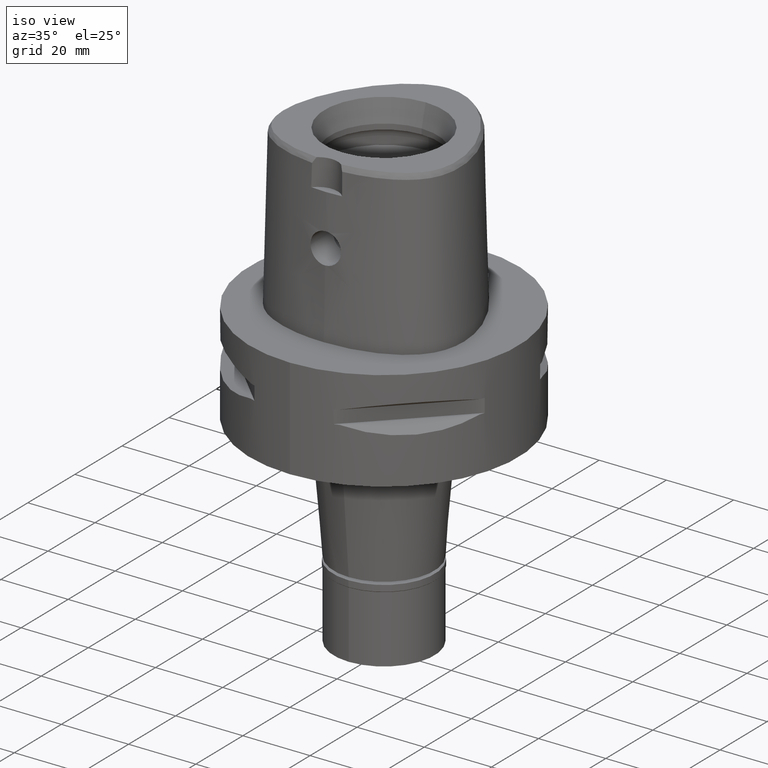
[diagram: clean part render]
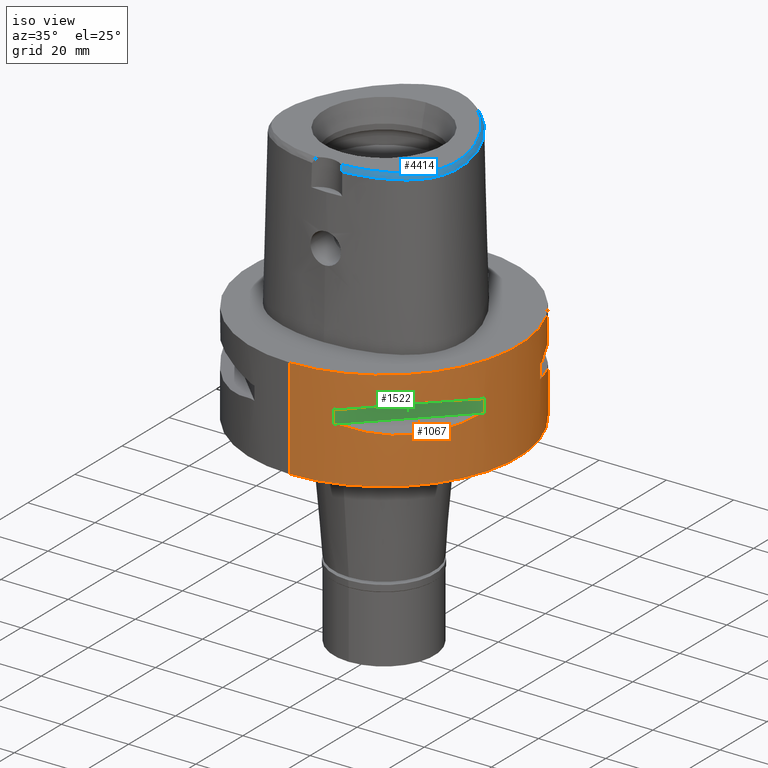
[diagram: same view with three faces highlighted in distinct colors, each labeled with its STEP entity id]
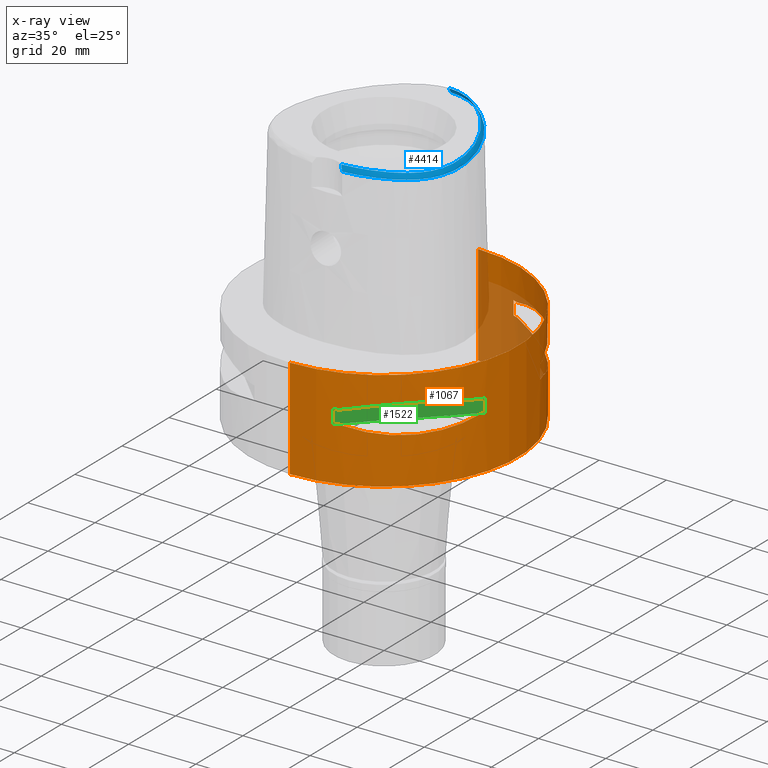
[diagram: x-ray of the same camera — body ghosted, the three highlighted faces saturated]
A machine part, iso view with three faces highlighted in distinct colors.
The next image is the same camera in x-ray (body ghosted, the three faces saturated) — at least one of them is partly hidden behind the body in this view.
Their STEP definitions:

[orange] entity #1067 — the highlighted cylindrical surface (partial cylindrical patch) has radius 40 mm, axis along (0, 0, -1).
#9 = CIRCLE ( 'NONE', #2864, 39.99999999999997868 ) ;
#49 = ORIENTED_EDGE ( 'NONE', *, *, #4086, .F. ) ;
#66 = DIRECTION ( 'NONE',  ( 0.9558028356769561196, 0.2940084000702865574, 0.0000000000000000000 ) ) ;
#91 = VERTEX_POINT ( 'NONE', #4753 ) ;
#96 = CARTESIAN_POINT ( 'NONE',  ( 0.0000000000000000000, 1.275653338331999844E-14, -14.05000000000000071 ) ) ;
#99 = ORIENTED_EDGE ( 'NONE', *, *, #3116, .T. ) ;
#119 = EDGE_CURVE ( 'NONE', #4895, #2868, #4777, .T. ) ;
#123 = CARTESIAN_POINT ( 'NONE',  ( 21.75464223249287699, 33.56701934068274795, -15.82109001420633732 ) ) ;
#142 = CARTESIAN_POINT ( 'NONE',  ( 23.60097336453497618, 32.30995221951452834, -16.06165603927751917 ) ) ;
#176 = B_SPLINE_CURVE_WITH_KNOTS ( 'NONE', 3,
 ( #3597, #4689, #3218, #4741, #811, #4797, #834, #3570, #3908, #3141 ),
 .UNSPECIFIED., .F., .F.,
 ( 4, 2, 2, 2, 4 ),
 ( 0.0000000000000000000, 0.2500000000000000000, 0.5000000000000000000, 0.7500000000000000000, 1.000000000000000000 ),
 .UNSPECIFIED. ) ;
#190 = ORIENTED_EDGE ( 'NONE', *, *, #1991, .T. ) ;
#195 = CARTESIAN_POINT ( 'NONE',  ( 21.44484052678270913, -33.76566745675011560, -15.77571175125575031 ) ) ;
#198 = CARTESIAN_POINT ( 'NONE',  ( 33.91944728533341191, 21.20128033779756294, -15.73905907260447101 ) ) ;
#210 = DIRECTION ( 'NONE',  ( 0.0000000000000000000, 0.0000000000000000000, -1.000000000000000000 ) ) ;
#219 = EDGE_CURVE ( 'NONE', #3469, #1496, #2300, .T. ) ;
#224 = CARTESIAN_POINT ( 'NONE',  ( 34.44518065740276569, 20.34261333234974245, -15.60313948593977074 ) ) ;
#260 = ORIENTED_EDGE ( 'NONE', *, *, #4755, .T. ) ;
#303 = DIRECTION ( 'NONE',  ( 0.0000000000000000000, 0.0000000000000000000, 1.000000000000000000 ) ) ;
#320 = VERTEX_POINT ( 'NONE', #5036 ) ;
#333 = ORIENTED_EDGE ( 'NONE', *, *, #3235, .F. ) ;
#336 = VECTOR ( 'NONE', #3079, 1000.000000000000000 ) ;
#367 = B_SPLINE_CURVE_WITH_KNOTS ( 'NONE', 3,
 ( #591, #3334, #916, #1330, #1767, #2517, #1797, #4093, #2198, #195, #3382, #2929, #1288, #4507, #1381, #2164, #3357, #945, #2539, #2888, #2957, #4135, #4459, #2492, #539, #2141 ),
 .UNSPECIFIED., .F., .F.,
 ( 4, 1, 1, 1, 1, 1, 1, 2, 2, 2, 1, 1, 1, 1, 1, 1, 2, 2, 4 ),
 ( 0.0000000000000000000, 0.1250000000000018319, 0.1875000000000027478, 0.2187500000000032196, 0.2343750000000035805, 0.2421875000000038025, 0.2460937500000040523, 0.2480468750000043576, 0.2500000000000046629, 0.5000000000000000000, 0.6249999999999975575, 0.6874999999999964473, 0.7187499999999961142, 0.7343749999999960032, 0.7421874999999960032, 0.7460937499999957812, 0.7480468749999958922, 0.7499999999999958922, 1.000000000000000000 ),
 .UNSPECIFIED. ) ;
#393 = CARTESIAN_POINT ( 'NONE',  ( 38.23211342708000160, 11.76033600280999991, -14.05000000000000071 ) ) ;
#415 = CIRCLE ( 'NONE', #2922, 39.99999999999999289 ) ;
#492 = ORIENTED_EDGE ( 'NONE', *, *, #219, .T. ) ;
#522 = CARTESIAN_POINT ( 'NONE',  ( 36.35358138589326416, 16.81132763100200123, -14.94059947015123058 ) ) ;
#539 = CARTESIAN_POINT ( 'NONE',  ( 36.72682052669194519, -16.14402792113480345, -14.82054974553614635 ) ) ;
#546 = VERTEX_POINT ( 'NONE', #2767 ) ;
#564 = CARTESIAN_POINT ( 'NONE',  ( 16.14402792110260521, 36.72682052670324993, -14.82054974552761095 ) ) ;
#591 = CARTESIAN_POINT ( 'NONE',  ( 13.23717311056000057, -37.74622163926999718, -14.05000000000000071 ) ) ;
#594 = CARTESIAN_POINT ( 'NONE',  ( 21.50560509406274434, 33.72697758561020720, -15.78472370821746118 ) ) ;
#624 = VERTEX_POINT ( 'NONE', #3537 ) ;
#625 = CARTESIAN_POINT ( 'NONE',  ( 35.11589783530617126, 19.18269457493275354, -15.40342377741110091 ) ) ;
#626 = B_SPLINE_CURVE_WITH_KNOTS ( 'NONE', 3,
 ( #5052, #1105, #1854, #3440, #5024, #4245, #4663, #680, #1883, #3058 ),
 .UNSPECIFIED., .F., .F.,
 ( 4, 2, 2, 2, 4 ),
 ( 0.0000000000000000000, 0.2500000000000000000, 0.5000000000000000000, 0.7500000000000000000, 1.000000000000000000 ),
 .UNSPECIFIED. ) ;
#636 = VERTEX_POINT ( 'NONE', #1582 ) ;
#680 = CARTESIAN_POINT ( 'NONE',  ( 35.41591128513823605, -18.83182902076454468, -8.619912199391260188 ) ) ;
#685 = CARTESIAN_POINT ( 'NONE',  ( 11.76033600280999991, -38.23211342708000160, -9.950000000000001066 ) ) ;
#735 = CARTESIAN_POINT ( 'NONE',  ( 13.23717311056000057, -37.74622163926999718, -14.05000000000000071 ) ) ;
#811 = CARTESIAN_POINT ( 'NONE',  ( 30.36058330527161075, 26.20795918965221460, -7.669882118573493557 ) ) ;
#822 = DIRECTION ( 'NONE',  ( 0.0000000000000000000, 0.0000000000000000000, -1.000000000000000000 ) ) ;
#826 = DIRECTION ( 'NONE',  ( 0.0000000000000000000, 0.0000000000000000000, 1.000000000000000000 ) ) ;
#834 = CARTESIAN_POINT ( 'NONE',  ( 23.88364259920617272, 32.22570670470200582, -7.859869859750699739 ) ) ;
#851 = VECTOR ( 'NONE', #303, 1000.000000000000000 ) ;
#871 = LINE ( 'NONE', #2399, #4335 ) ;
#916 = CARTESIAN_POINT ( 'NONE',  ( 16.81132763099230587, -36.35358138589664634, -14.94059947014864775 ) ) ;
#919 = CARTESIAN_POINT ( 'NONE',  ( 33.76566745675005166, 21.44484052678287256, -15.77571175125579828 ) ) ;
#928 = VECTOR ( 'NONE', #210, 1000.000000000000000 ) ;
#945 = CARTESIAN_POINT ( 'NONE',  ( 33.39247868354526361, -22.02254759438564591, -15.85920599531236164 ) ) ;
#948 = ORIENTED_EDGE ( 'NONE', *, *, #4765, .F. ) ;
#974 = CARTESIAN_POINT ( 'NONE',  ( 27.25214773984120598, 29.31642813391417590, -16.33014064577303515 ) ) ;
#991 = DIRECTION ( 'NONE',  ( 0.9558028356769561196, -0.2940084000702865574, 0.0000000000000000000 ) ) ;
#1013 = DIRECTION ( 'NONE',  ( 0.0000000000000000000, 0.0000000000000000000, 1.000000000000000000 ) ) ;
#1067 = ADVANCED_FACE ( 'NONE', ( #1238, #2073, #3248 ), #4065, .T. ) ;
#1081 = ORIENTED_EDGE ( 'NONE', *, *, #3555, .T. ) ;
#1083 = ORIENTED_EDGE ( 'NONE', *, *, #3925, .T. ) ;
#1090 = DIRECTION ( 'NONE',  ( 0.0000000000000000000, 0.0000000000000000000, -1.000000000000000000 ) ) ;
#1096 = AXIS2_PLACEMENT_3D ( 'NONE', #1198, #4627, #5013 ) ;
#1105 = CARTESIAN_POINT ( 'NONE',  ( 16.10435486228985980, -36.74073341982089147, -9.189966798081965038 ) ) ;
#1198 = CARTESIAN_POINT ( 'NONE',  ( 0.0000000000000000000, 1.275653338331999844E-14, -14.05000000000000071 ) ) ;
#1221 = DIRECTION ( 'NONE',  ( 0.0000000000000000000, 0.0000000000000000000, 1.000000000000000000 ) ) ;
#1238 = FACE_OUTER_BOUND ( 'NONE', #1768, .T. ) ;
#1242 = VERTEX_POINT ( 'NONE', #2139 ) ;
#1288 = CARTESIAN_POINT ( 'NONE',  ( 26.21995747456629644, -30.34851826269509800, -16.33009976522055240 ) ) ;
#1311 = CARTESIAN_POINT ( 'NONE',  ( 22.55421454656803704, 33.03835700910301654, -15.93168855142971374 ) ) ;
#1330 = CARTESIAN_POINT ( 'NONE',  ( 19.18269457492549179, -35.11589783530871500, -15.40342377740917001 ) ) ;
#1381 = CARTESIAN_POINT ( 'NONE',  ( 30.77249687753092289, -25.62819065487347814, -16.26160051742767365 ) ) ;
#1392 = VERTEX_POINT ( 'NONE', #3770 ) ;
#1394 = LINE ( 'NONE', #5014, #928 ) ;
#1411 = B_SPLINE_CURVE_WITH_KNOTS ( 'NONE', 3,
 ( #2910, #3719, #522, #625, #224, #2125, #198, #2544, #4138, #919, #4116, #3775, #1800, #974, #3412, #142, #1311, #2564, #123, #4167, #1772, #4486, #594, #3702, #564, #2981 ),
 .UNSPECIFIED., .F., .F.,
 ( 4, 1, 1, 1, 1, 1, 1, 2, 2, 2, 1, 1, 1, 1, 1, 1, 2, 2, 4 ),
 ( 0.0000000000000000000, 0.1249999999999938660, 0.1874999999999906741, 0.2187499999999889255, 0.2343749999999879541, 0.2421874999999872879, 0.2460937499999869549, 0.2480468749999869271, 0.2499999999999869271, 0.4999999999999968914, 0.6250000000000018874, 0.6875000000000044409, 0.7187500000000057732, 0.7343750000000064393, 0.7421875000000067724, 0.7460937500000065503, 0.7480468750000062172, 0.7500000000000058842, 1.000000000000000000 ),
 .UNSPECIFIED. ) ;
#1424 = CARTESIAN_POINT ( 'NONE',  ( 11.76033600280999991, 38.23211342708000160, -14.05000000000000071 ) ) ;
#1453 = CARTESIAN_POINT ( 'NONE',  ( 38.23211342708000160, -11.76033600280999991, -9.950000000000001066 ) ) ;
#1484 = ORIENTED_EDGE ( 'NONE', *, *, #5166, .T. ) ;
#1496 = VERTEX_POINT ( 'NONE', #3909 ) ;
#1503 = CIRCLE ( 'NONE', #2433, 39.99999999999999289 ) ;
#1582 = CARTESIAN_POINT ( 'NONE',  ( 37.74622163926999718, -13.23717311056000057, -14.05000000000000071 ) ) ;
#1767 = CARTESIAN_POINT ( 'NONE',  ( 20.34261333234551472, -34.44518065740425783, -15.60313948593864275 ) ) ;
#1768 = EDGE_LOOP ( 'NONE', ( #492, #1083, #3650, #948 ) ) ;
#1772 = CARTESIAN_POINT ( 'NONE',  ( 21.56243030661663695, 33.69065616467183588, -15.79309434609252705 ) ) ;
#1797 = CARTESIAN_POINT ( 'NONE',  ( 21.20128033779640830, -33.91944728533381692, -15.73905907260415837 ) ) ;
#1800 = CARTESIAN_POINT ( 'NONE',  ( 30.34851826270024944, 26.21995747455423853, -16.33009976521772799 ) ) ;
#1824 = EDGE_CURVE ( 'NONE', #3811, #4871, #2160, .T. ) ;
#1854 = CARTESIAN_POINT ( 'NONE',  ( 18.83173199174709467, -35.41596287855377767, -8.619939612211808821 ) ) ;
#1883 = CARTESIAN_POINT ( 'NONE',  ( 36.74070924257181758, -16.10442380448734312, -9.189948522868267133 ) ) ;
#1904 = LINE ( 'NONE', #2697, #336 ) ;
#1907 = CARTESIAN_POINT ( 'NONE',  ( 38.23211342708000160, -11.76033600280999991, -14.05000000000000071 ) ) ;
#1909 = VERTEX_POINT ( 'NONE', #1907 ) ;
#1929 = ORIENTED_EDGE ( 'NONE', *, *, #3003, .T. ) ;
#1976 = CARTESIAN_POINT ( 'NONE',  ( 38.23211342708000160, 11.76033600280999991, -9.950000000000001066 ) ) ;
#1991 = EDGE_CURVE ( 'NONE', #2960, #3811, #626, .T. ) ;
#2032 = ORIENTED_EDGE ( 'NONE', *, *, #3193, .F. ) ;
#2073 = FACE_BOUND ( 'NONE', #3048, .T. ) ;
#2125 = CARTESIAN_POINT ( 'NONE',  ( 34.09685321779860345, 20.91613153242115075, -15.69507322892878953 ) ) ;
#2132 = CARTESIAN_POINT ( 'NONE',  ( 0.0000000000000000000, 40.00000000000000000, 0.0000000000000000000 ) ) ;
#2139 = CARTESIAN_POINT ( 'NONE',  ( 0.0000000000000000000, 40.00000000000000000, -30.00000000000000000 ) ) ;
#2141 = CARTESIAN_POINT ( 'NONE',  ( 37.74622163926999718, -13.23717311056000057, -14.05000000000000071 ) ) ;
#2160 = CIRCLE ( 'NONE', #4563, 39.99999999999997868 ) ;
#2164 = CARTESIAN_POINT ( 'NONE',  ( 32.30995221950663421, -23.60097336453835837, -16.06165603927566821 ) ) ;
#2198 = CARTESIAN_POINT ( 'NONE',  ( 21.40429668490248005, -33.79139713908606524, -15.76966389594713647 ) ) ;
#2235 = DIRECTION ( 'NONE',  ( 0.0000000000000000000, 1.000000000000000000, 0.0000000000000000000 ) ) ;
#2243 = DIRECTION ( 'NONE',  ( 0.9436555409818374596, -0.3309293277639132058, 0.0000000000000000000 ) ) ;
#2257 = CIRCLE ( 'NONE', #4821, 40.00000000000000000 ) ;
#2293 = EDGE_CURVE ( 'NONE', #546, #1242, #2257, .T. ) ;
#2300 = CIRCLE ( 'NONE', #4934, 40.00000000000000000 ) ;
#2301 = DIRECTION ( 'NONE',  ( 0.9436555409818374596, 0.3309293277639132058, 0.0000000000000000000 ) ) ;
#2399 = CARTESIAN_POINT ( 'NONE',  ( 0.0000000000000000000, -40.00000000000000000, 0.0000000000000000000 ) ) ;
#2433 = AXIS2_PLACEMENT_3D ( 'NONE', #2465, #4042, #66 ) ;
#2444 = CIRCLE ( 'NONE', #4429, 39.99999999999999289 ) ;
#2465 = CARTESIAN_POINT ( 'NONE',  ( 0.0000000000000000000, 1.275653338331999844E-14, -9.950000000000001066 ) ) ;
#2492 = CARTESIAN_POINT ( 'NONE',  ( 35.39137327285502010, -18.89342208874845142, -15.39779115589221625 ) ) ;
#2517 = CARTESIAN_POINT ( 'NONE',  ( 20.91613153241887701, -34.09685321779939926, -15.69507322892818557 ) ) ;
#2539 = CARTESIAN_POINT ( 'NONE',  ( 33.56701934068144766, -21.75464223249341345, -15.82109001420603533 ) ) ;
#2544 = CARTESIAN_POINT ( 'NONE',  ( 33.82993376593505275, 21.34345216682098112, -15.76055673748761166 ) ) ;
#2564 = CARTESIAN_POINT ( 'NONE',  ( 22.02254759438460141, 33.39247868354773630, -15.85920599531294783 ) ) ;
#2585 = VERTEX_POINT ( 'NONE', #735 ) ;
#2605 = DIRECTION ( 'NONE',  ( 0.0000000000000000000, 0.0000000000000000000, 1.000000000000000000 ) ) ;
#2682 = CIRCLE ( 'NONE', #1096, 39.99999999999999289 ) ;
#2697 = CARTESIAN_POINT ( 'NONE',  ( 11.76033600280999991, -38.23211342708000160, -9.950000000000001066 ) ) ;
#2767 = CARTESIAN_POINT ( 'NONE',  ( 0.0000000000000000000, -40.00000000000000000, -30.00000000000000000 ) ) ;
#2817 = CARTESIAN_POINT ( 'NONE',  ( 38.23211342708000160, -11.76033600280999991, -14.05000000000000071 ) ) ;
#2864 = AXIS2_PLACEMENT_3D ( 'NONE', #3073, #1090, #2301 ) ;
#2868 = VERTEX_POINT ( 'NONE', #393 ) ;
#2878 = CARTESIAN_POINT ( 'NONE',  ( 37.74622163926999718, 13.23717311056000057, -9.950000000002001244 ) ) ;
#2888 = CARTESIAN_POINT ( 'NONE',  ( 33.65365962422774260, -21.62017158009728135, -15.80156334789082528 ) ) ;
#2910 = CARTESIAN_POINT ( 'NONE',  ( 37.74622163926999718, 13.23717311056000057, -14.05000000000000071 ) ) ;
#2921 = EDGE_CURVE ( 'NONE', #4895, #3366, #1503, .T. ) ;
#2922 = AXIS2_PLACEMENT_3D ( 'NONE', #96, #4530, #991 ) ;
#2929 = CARTESIAN_POINT ( 'NONE',  ( 23.95303639238279914, -32.16767032370825063, -16.14729882780506287 ) ) ;
#2957 = CARTESIAN_POINT ( 'NONE',  ( 33.69065616467145929, -21.56243030661679327, -15.79309434609244001 ) ) ;
#2960 = VERTEX_POINT ( 'NONE', #4298 ) ;
#2981 = CARTESIAN_POINT ( 'NONE',  ( 13.23717311056000057, 37.74622163926999718, -14.05000000000000071 ) ) ;
#2986 = DIRECTION ( 'NONE',  ( 0.0000000000000000000, -1.000000000000000000, 0.0000000000000000000 ) ) ;
#3003 = EDGE_CURVE ( 'NONE', #320, #1392, #3734, .T. ) ;
#3035 = VERTEX_POINT ( 'NONE', #4869 ) ;
#3048 = EDGE_LOOP ( 'NONE', ( #4130, #3868, #99, #2032, #3076, #333, #260, #190 ) ) ;
#3058 = CARTESIAN_POINT ( 'NONE',  ( 37.74622163926999718, -13.23717311056000057, -9.950000000002001244 ) ) ;
#3073 = CARTESIAN_POINT ( 'NONE',  ( 0.0000000000000000000, 1.275653338331999844E-14, -14.05000000000000071 ) ) ;
#3076 = ORIENTED_EDGE ( 'NONE', *, *, #3984, .T. ) ;
#3079 = DIRECTION ( 'NONE',  ( 0.0000000000000000000, 0.0000000000000000000, -1.000000000000000000 ) ) ;
#3116 = EDGE_CURVE ( 'NONE', #1909, #636, #415, .T. ) ;
#3141 = CARTESIAN_POINT ( 'NONE',  ( 13.23717311056000057, 37.74622163926999718, -9.950000000002001244 ) ) ;
#3165 = ORIENTED_EDGE ( 'NONE', *, *, #4784, .F. ) ;
#3193 = EDGE_CURVE ( 'NONE', #2585, #636, #367, .T. ) ;
#3198 = VECTOR ( 'NONE', #3578, 1000.000000000000000 ) ;
#3218 = CARTESIAN_POINT ( 'NONE',  ( 35.41596287855380609, 18.83173199174708046, -8.619939612211808821 ) ) ;
#3235 = EDGE_CURVE ( 'NONE', #4408, #624, #1904, .T. ) ;
#3248 = FACE_BOUND ( 'NONE', #5123, .T. ) ;
#3334 = CARTESIAN_POINT ( 'NONE',  ( 14.69039122917563844, -37.23659447745037454, -14.43521939500837981 ) ) ;
#3350 = AXIS2_PLACEMENT_3D ( 'NONE', #4045, #4407, #3699 ) ;
#3357 = CARTESIAN_POINT ( 'NONE',  ( 33.03835700909839090, -22.55421454657001235, -15.93168855142863904 ) ) ;
#3366 = VERTEX_POINT ( 'NONE', #2878 ) ;
#3382 = CARTESIAN_POINT ( 'NONE',  ( 21.46607685731536819, -33.75216276490051825, -15.77886817953059051 ) ) ;
#3412 = CARTESIAN_POINT ( 'NONE',  ( 25.62819065486898396, 30.77249687754148866, -16.26160051743016055 ) ) ;
#3440 = CARTESIAN_POINT ( 'NONE',  ( 23.88355431037091137, -32.22577213857957901, -7.859897272571249260 ) ) ;
#3469 = VERTEX_POINT ( 'NONE', #2132 ) ;
#3537 = CARTESIAN_POINT ( 'NONE',  ( 11.76033600280999991, -38.23211342708000160, -14.05000000000000071 ) ) ;
#3555 = EDGE_CURVE ( 'NONE', #4922, #91, #2682, .T. ) ;
#3570 = CARTESIAN_POINT ( 'NONE',  ( 18.83182902076451626, 35.41591128513827869, -8.619912199391260188 ) ) ;
#3578 = DIRECTION ( 'NONE',  ( 0.0000000000000000000, 0.0000000000000000000, -1.000000000000000000 ) ) ;
#3597 = CARTESIAN_POINT ( 'NONE',  ( 37.74622163926999718, 13.23717311056000057, -9.950000000002001244 ) ) ;
#3629 = ORIENTED_EDGE ( 'NONE', *, *, #119, .F. ) ;
#3650 = ORIENTED_EDGE ( 'NONE', *, *, #2293, .T. ) ;
#3699 = DIRECTION ( 'NONE',  ( 0.0000000000000000000, -1.000000000000000000, 0.0000000000000000000 ) ) ;
#3702 = CARTESIAN_POINT ( 'NONE',  ( 18.89342208871625317, 35.39137327286631063, -15.39779115588368619 ) ) ;
#3719 = CARTESIAN_POINT ( 'NONE',  ( 37.23659447744844897, 14.69039122918117357, -14.43521939500984885 ) ) ;
#3734 = CIRCLE ( 'NONE', #5165, 39.99999999999997868 ) ;
#3770 = CARTESIAN_POINT ( 'NONE',  ( 11.76033600280999991, 38.23211342708000160, -9.950000000000001066 ) ) ;
#3775 = CARTESIAN_POINT ( 'NONE',  ( 32.16767032371209467, 23.95303639237203797, -16.14729882780224202 ) ) ;
#3811 = VERTEX_POINT ( 'NONE', #4805 ) ;
#3830 = EDGE_CURVE ( 'NONE', #1909, #4871, #4363, .T. ) ;
#3848 = CARTESIAN_POINT ( 'NONE',  ( 38.23211342708000160, 11.76033600280999991, -9.950000000000001066 ) ) ;
#3868 = ORIENTED_EDGE ( 'NONE', *, *, #3830, .F. ) ;
#3908 = CARTESIAN_POINT ( 'NONE',  ( 16.10442380448735733, 36.74070924257181758, -9.189948522868267133 ) ) ;
#3909 = CARTESIAN_POINT ( 'NONE',  ( 0.0000000000000000000, -40.00000000000000000, 0.0000000000000000000 ) ) ;
#3918 = VECTOR ( 'NONE', #1221, 1000.000000000000000 ) ;
#3925 = EDGE_CURVE ( 'NONE', #1496, #546, #871, .T. ) ;
#3940 = ORIENTED_EDGE ( 'NONE', *, *, #4906, .T. ) ;
#3984 = EDGE_CURVE ( 'NONE', #2585, #624, #4424, .T. ) ;
#3992 = ORIENTED_EDGE ( 'NONE', *, *, #2921, .T. ) ;
#3993 = DIRECTION ( 'NONE',  ( 0.0000000000000000000, 0.0000000000000000000, -1.000000000000000000 ) ) ;
#4042 = DIRECTION ( 'NONE',  ( 0.0000000000000000000, 0.0000000000000000000, 1.000000000000000000 ) ) ;
#4045 = CARTESIAN_POINT ( 'NONE',  ( 0.0000000000000000000, 1.275653338331999844E-14, 4.165000000000000036 ) ) ;
#4065 = CYLINDRICAL_SURFACE ( 'NONE', #3350, 40.00000000000000000 ) ;
#4086 = EDGE_CURVE ( 'NONE', #3035, #91, #1411, .T. ) ;
#4093 = CARTESIAN_POINT ( 'NONE',  ( 21.34345216682037716, -33.82993376593525170, -15.76055673748744468 ) ) ;
#4116 = CARTESIAN_POINT ( 'NONE',  ( 33.75216276490046852, 21.46607685731544990, -15.77886817953061005 ) ) ;
#4130 = ORIENTED_EDGE ( 'NONE', *, *, #1824, .T. ) ;
#4135 = CARTESIAN_POINT ( 'NONE',  ( 33.71529052282339478, -21.52391145898932834, -15.78742602700008568 ) ) ;
#4138 = CARTESIAN_POINT ( 'NONE',  ( 33.79139713908593023, 21.40429668490282467, -15.76966389594722528 ) ) ;
#4167 = CARTESIAN_POINT ( 'NONE',  ( 21.62017158009700069, 33.65365962422837498, -15.80156334789098160 ) ) ;
#4209 = DIRECTION ( 'NONE',  ( 0.2940084000702865574, -0.9558028356769561196, 0.0000000000000000000 ) ) ;
#4240 = DIRECTION ( 'NONE',  ( 0.3309293277639132058, 0.9436555409818374596, 0.0000000000000000000 ) ) ;
#4245 = CARTESIAN_POINT ( 'NONE',  ( 30.36058330527161075, -26.20795918965218618, -7.669863843587146235 ) ) ;
#4295 = CARTESIAN_POINT ( 'NONE',  ( 0.0000000000000000000, 1.275653338331999844E-14, -9.950000000000001066 ) ) ;
#4298 = CARTESIAN_POINT ( 'NONE',  ( 13.23717311056000057, -37.74622163926999718, -9.950000000002001244 ) ) ;
#4335 = VECTOR ( 'NONE', #822, 1000.000000000000000 ) ;
#4363 = LINE ( 'NONE', #2817, #3918 ) ;
#4370 = CARTESIAN_POINT ( 'NONE',  ( 11.76033600280999991, 38.23211342708000160, -14.05000000000000071 ) ) ;
#4392 = CARTESIAN_POINT ( 'NONE',  ( 0.0000000000000000000, 1.275653338331999844E-14, -30.00000000000000000 ) ) ;
#4407 = DIRECTION ( 'NONE',  ( 0.0000000000000000000, 0.0000000000000000000, -1.000000000000000000 ) ) ;
#4408 = VERTEX_POINT ( 'NONE', #685 ) ;
#4424 = CIRCLE ( 'NONE', #5080, 39.99999999999997868 ) ;
#4429 = AXIS2_PLACEMENT_3D ( 'NONE', #4295, #2605, #4209 ) ;
#4459 = CARTESIAN_POINT ( 'NONE',  ( 33.72697758561029246, -21.50560509406250276, -15.78472370821739901 ) ) ;
#4486 = CARTESIAN_POINT ( 'NONE',  ( 21.52391145898924663, 33.71529052282357952, -15.78742602700012831 ) ) ;
#4507 = CARTESIAN_POINT ( 'NONE',  ( 29.31642813390815050, -27.25214773984377459, -16.33014064577162472 ) ) ;
#4530 = DIRECTION ( 'NONE',  ( 0.0000000000000000000, 0.0000000000000000000, -1.000000000000000000 ) ) ;
#4539 = CARTESIAN_POINT ( 'NONE',  ( 0.0000000000000000000, 1.275653338331999844E-14, 0.0000000000000000000 ) ) ;
#4545 = CARTESIAN_POINT ( 'NONE',  ( 0.0000000000000000000, 1.275653338331999844E-14, -9.950000000000001066 ) ) ;
#4563 = AXIS2_PLACEMENT_3D ( 'NONE', #4545, #4631, #2243 ) ;
#4627 = DIRECTION ( 'NONE',  ( 0.0000000000000000000, 0.0000000000000000000, -1.000000000000000000 ) ) ;
#4631 = DIRECTION ( 'NONE',  ( 0.0000000000000000000, 0.0000000000000000000, 1.000000000000000000 ) ) ;
#4663 = CARTESIAN_POINT ( 'NONE',  ( 32.22570670470193477, -23.88364259920623667, -7.859869859750699739 ) ) ;
#4681 = LINE ( 'NONE', #1424, #851 ) ;
#4689 = CARTESIAN_POINT ( 'NONE',  ( 36.74073341982096252, 16.10435486228974611, -9.189966798081965038 ) ) ;
#4741 = CARTESIAN_POINT ( 'NONE',  ( 32.22577213857955059, 23.88355431037101795, -7.859897272571249260 ) ) ;
#4753 = CARTESIAN_POINT ( 'NONE',  ( 13.23717311056000057, 37.74622163926999718, -14.05000000000000071 ) ) ;
#4755 = EDGE_CURVE ( 'NONE', #4408, #2960, #2444, .T. ) ;
#4765 = EDGE_CURVE ( 'NONE', #3469, #1242, #1394, .T. ) ;
#4777 = LINE ( 'NONE', #1976, #3198 ) ;
#4784 = EDGE_CURVE ( 'NONE', #4922, #1392, #4681, .T. ) ;
#4797 = CARTESIAN_POINT ( 'NONE',  ( 26.20795918965211158, 30.36058330527170668, -7.669863843587146235 ) ) ;
#4805 = CARTESIAN_POINT ( 'NONE',  ( 37.74622163926999718, -13.23717311056000057, -9.950000000002001244 ) ) ;
#4821 = AXIS2_PLACEMENT_3D ( 'NONE', #4392, #826, #2986 ) ;
#4826 = DIRECTION ( 'NONE',  ( 0.3309293277639132058, -0.9436555409818374596, 0.0000000000000000000 ) ) ;
#4869 = CARTESIAN_POINT ( 'NONE',  ( 37.74622163926999718, 13.23717311056000057, -14.05000000000000071 ) ) ;
#4871 = VERTEX_POINT ( 'NONE', #1453 ) ;
#4895 = VERTEX_POINT ( 'NONE', #3848 ) ;
#4906 = EDGE_CURVE ( 'NONE', #3035, #2868, #9, .T. ) ;
#4922 = VERTEX_POINT ( 'NONE', #4370 ) ;
#4926 = DIRECTION ( 'NONE',  ( 0.0000000000000000000, 0.0000000000000000000, -1.000000000000000000 ) ) ;
#4934 = AXIS2_PLACEMENT_3D ( 'NONE', #4539, #4926, #2235 ) ;
#5013 = DIRECTION ( 'NONE',  ( 0.2940084000702865574, 0.9558028356769561196, 0.0000000000000000000 ) ) ;
#5014 = CARTESIAN_POINT ( 'NONE',  ( 0.0000000000000000000, 40.00000000000000000, 0.0000000000000000000 ) ) ;
#5018 = CARTESIAN_POINT ( 'NONE',  ( 0.0000000000000000000, 1.275653338331999844E-14, -9.950000000000001066 ) ) ;
#5024 = CARTESIAN_POINT ( 'NONE',  ( 26.20795918965211158, -30.36058330527167115, -7.669882118573493557 ) ) ;
#5036 = CARTESIAN_POINT ( 'NONE',  ( 13.23717311056000057, 37.74622163926999718, -9.950000000002001244 ) ) ;
#5052 = CARTESIAN_POINT ( 'NONE',  ( 13.23717311056000057, -37.74622163926999718, -9.950000000002001244 ) ) ;
#5080 = AXIS2_PLACEMENT_3D ( 'NONE', #5168, #3993, #4826 ) ;
#5123 = EDGE_LOOP ( 'NONE', ( #1929, #3165, #1081, #49, #3940, #3629, #3992, #1484 ) ) ;
#5165 = AXIS2_PLACEMENT_3D ( 'NONE', #5018, #1013, #4240 ) ;
#5166 = EDGE_CURVE ( 'NONE', #3366, #320, #176, .T. ) ;
#5168 = CARTESIAN_POINT ( 'NONE',  ( 0.0000000000000000000, 1.275653338331999844E-14, -14.05000000000000071 ) ) ;

[blue] entity #4414 — the highlighted face is a freeform B-spline surface patch.
#17 = CARTESIAN_POINT ( 'NONE',  ( 12.30827841692999947, 22.31358742951000096, 47.56778521082999589 ) ) ;
#23 = CARTESIAN_POINT ( 'NONE',  ( 18.35629572338999793, -19.86592511087000190, 46.95290423267000079 ) ) ;
#33 = CARTESIAN_POINT ( 'NONE',  ( 5.331982176208637014, 26.48833275828505762, 48.00000000000437694 ) ) ;
#43 = CARTESIAN_POINT ( 'NONE',  ( 2.239190224898000015, 27.98460823625999794, 46.95290373381000393 ) ) ;
#47 = CARTESIAN_POINT ( 'NONE',  ( 20.11887203170000049, -18.71436605973000056, 46.95290430842000262 ) ) ;
#63 = CARTESIAN_POINT ( 'NONE',  ( 7.225125039216999667, 25.87582929107999874, 47.56778477671999639 ) ) ;
#69 = CARTESIAN_POINT ( 'NONE',  ( 21.34368279289999748, -17.27842411728000016, 47.56778455097000347 ) ) ;
#78 = CARTESIAN_POINT ( 'NONE',  ( 10.99875819582631742, 24.38035098656107991, 46.52071268652616709 ) ) ;
#94 = CARTESIAN_POINT ( 'NONE',  ( 22.51168726802000108, -16.10559452158999605, 47.56778461883000375 ) ) ;
#117 = CARTESIAN_POINT ( 'NONE',  ( 25.68816906158999913, -6.317139005475000069, 48.18266506716999942 ) ) ;
#124 = CARTESIAN_POINT ( 'NONE',  ( 10.03889926274025512, 23.82643791975489478, 48.00000000000869704 ) ) ;
#136 = CARTESIAN_POINT ( 'NONE',  ( 26.71921796578000041, -5.192573481251999468, 46.33802341338999753 ) ) ;
#146 = CARTESIAN_POINT ( 'NONE',  ( 4.358863301034158866, -23.38302754646648651, 48.00000000000662226 ) ) ;
#166 = CARTESIAN_POINT ( 'NONE',  ( 24.84710733047000275, -12.40399542197999949, 47.56778472267999547 ) ) ;
#173 = CARTESIAN_POINT ( 'NONE',  ( 13.54089058450414917, -21.43147460489113953, 48.00000000000849099 ) ) ;
#186 = CARTESIAN_POINT ( 'NONE',  ( -0.5411535927034999416, 28.50621727621999923, 46.33802340310999313 ) ) ;
#192 = CARTESIAN_POINT ( 'NONE',  ( 26.32690814117000144, -7.394181085702999923, 46.95290458815000534 ) ) ;
#199 = CARTESIAN_POINT ( 'NONE',  ( 25.74155027847784893, -7.352132003089971946, 48.00000000000314770 ) ) ;
#218 = CARTESIAN_POINT ( 'NONE',  ( 24.03916157868999903, 4.630155515772000463, 47.56778451223000559 ) ) ;
#225 = CARTESIAN_POINT ( 'NONE',  ( 19.77345709182964129, -18.23990985540024568, 48.00000000000305533 ) ) ;
#246 = CARTESIAN_POINT ( 'NONE',  ( 17.04596794832999862, 17.81177032536000127, 46.95290371981000277 ) ) ;
#279 = CARTESIAN_POINT ( 'NONE',  ( 19.53361932649999844, 15.00302212255000178, 46.33802432510000102 ) ) ;
#310 = CARTESIAN_POINT ( 'NONE',  ( 16.50781389038000313, 17.38127717165999897, 48.18266519101999990 ) ) ;
#337 = CARTESIAN_POINT ( 'NONE',  ( 21.85792903256999864, 9.679647874834000021, 47.56778511363999939 ) ) ;
#364 = CARTESIAN_POINT ( 'NONE',  ( 5.551590252672999881, 27.03257559895000028, 46.95290401761999988 ) ) ;
#389 = CARTESIAN_POINT ( 'NONE',  ( 13.64990170535000047, 21.54668897466000033, 46.95290665065999036 ) ) ;
#395 = CARTESIAN_POINT ( 'NONE',  ( 9.200701649944999616, -23.25065551721999668, 46.95290405675000045 ) ) ;
#410 = CARTESIAN_POINT ( 'NONE',  ( 12.76397727824999961, 22.83060991478999924, 46.33802588901000519 ) ) ;
#414 = CARTESIAN_POINT ( 'NONE',  ( 4.446800511424999769, -24.31005238819999903, 46.33802528953999911 ) ) ;
#427 = CARTESIAN_POINT ( 'NONE',  ( 24.69258566271574651, -14.08975149522464321, 46.52069831738057815 ) ) ;
#437 = CARTESIAN_POINT ( 'NONE',  ( 12.53612784758999865, 22.57209867215000187, 46.95290554992000409 ) ) ;
#442 = CARTESIAN_POINT ( 'NONE',  ( 9.129627024827000170, -22.91348416646999908, 47.56778459449999730 ) ) ;
#451 = CARTESIAN_POINT ( 'NONE',  ( 24.33934953590530625, -14.68006085516641512, 46.52069803563262695 ) ) ;
#460 = CARTESIAN_POINT ( 'NONE',  ( 0.7271512686161000216, 28.15617776415000151, 46.95290388235000023 ) ) ;
#467 = CARTESIAN_POINT ( 'NONE',  ( 17.02821640585000296, -19.81298334385999738, 48.18266513177000121 ) ) ;
#488 = CARTESIAN_POINT ( 'NONE',  ( 9.271776275062000749, -23.58782686797000139, 46.33802351901000094 ) ) ;
#498 = CARTESIAN_POINT ( 'NONE',  ( 11.70978320535149386, -23.05272019184888777, 46.52069240067358180 ) ) ;
#515 = CARTESIAN_POINT ( 'NONE',  ( 22.44593247186999818, -17.18006197596999840, 46.33802344268999462 ) ) ;
#524 = CARTESIAN_POINT ( 'NONE',  ( 0.2325907962420786235, 27.58331912251099993, 48.00000000000051159 ) ) ;
#536 = CARTESIAN_POINT ( 'NONE',  ( 26.03025546133000034, -5.211487708432999355, 47.56778456703000302 ) ) ;
#545 = CARTESIAN_POINT ( 'NONE',  ( 15.99678577414538339, -20.43406366493351456, 48.00000000000904521 ) ) ;
#554 = CARTESIAN_POINT ( 'NONE',  ( -0.5271351030950000016, 28.16195879778999966, 46.95290398373000329 ) ) ;
#558 = CARTESIAN_POINT ( 'NONE',  ( 24.79431518123999822, -11.57611324977999878, 48.18266510553999638 ) ) ;
#566 = CARTESIAN_POINT ( 'NONE',  ( 19.78466709479941699, 12.88995995781878712, 48.00000000000090949 ) ) ;
#579 = CARTESIAN_POINT ( 'NONE',  ( -0.8011462214507999446, 28.14629489488999781, 46.95290354293999258 ) ) ;
#586 = CARTESIAN_POINT ( 'NONE',  ( 26.42769315610999925, -9.384851671964000275, 46.33802332118000322 ) ) ;
#597 = CARTESIAN_POINT ( 'NONE',  ( 16.58774972841672835, 17.44522137221418845, 48.00000000000935074 ) ) ;
#620 = CARTESIAN_POINT ( 'NONE',  ( 15.91538373184000044, 19.16413730592000064, 46.95290461194999665 ) ) ;
#645 = CARTESIAN_POINT ( 'NONE',  ( 26.18759068566999915, -2.722467979009000505, 46.95290415695999542 ) ) ;
#646 = EDGE_CURVE ( 'NONE', #3386, #1514, #4806, .T. ) ;
#675 = CARTESIAN_POINT ( 'NONE',  ( 24.90611839443999997, 3.122603392687000046, 46.95290404472999768 ) ) ;
#698 = VECTOR ( 'NONE', #2031, 1000.000000000000114 ) ;
#706 = CARTESIAN_POINT ( 'NONE',  ( 17.88382802726000165, 16.15284594610000113, 47.56778472034999794 ) ) ;
#719 = VERTEX_POINT ( 'NONE', #2894 ) ;
#732 = CARTESIAN_POINT ( 'NONE',  ( 17.60599060682000072, 15.94903692397000050, 48.18266507903999951 ) ) ;
#736 = CARTESIAN_POINT ( 'NONE',  ( 3.458287174148000354, -23.69848226155000148, 47.56778501962000405 ) ) ;
#742 = EDGE_CURVE ( 'NONE', #3386, #719, #3654, .T. ) ;
#748 = EDGE_CURVE ( 'NONE', #719, #840, #1698, .T. ) ;
#757 = CARTESIAN_POINT ( 'NONE',  ( 11.01505790891999936, 22.95072083713000310, 48.18266515363000480 ) ) ;
#783 = CARTESIAN_POINT ( 'NONE',  ( -0.01554672482064000001, 27.48798861645999736, 48.18266509789999930 ) ) ;
#792 = CARTESIAN_POINT ( 'NONE',  ( 10.81465554444999988, -22.87301540944000067, 46.95290405390999666 ) ) ;
#809 = CARTESIAN_POINT ( 'NONE',  ( 3.746750449519999915, 27.28887842722999935, 47.56778476867999927 ) ) ;
#815 = CARTESIAN_POINT ( 'NONE',  ( 7.379350496576999596, -22.89386439197000200, 48.18266513972999832 ) ) ;
#832 = CARTESIAN_POINT ( 'NONE',  ( 5.680549526193999554, 27.35216840481999867, 46.33802345689999669 ) ) ;
#840 = VERTEX_POINT ( 'NONE', #3532 ) ;
#841 = CARTESIAN_POINT ( 'NONE',  ( 5.615540162280999503, -23.15063872333000106, 48.18266497685999639 ) ) ;
#859 = CARTESIAN_POINT ( 'NONE',  ( 3.027610697659999683, 27.82828105751999814, 46.95290426986999677 ) ) ;
#864 = CARTESIAN_POINT ( 'NONE',  ( 12.12707321900000146, -21.78916728793000246, 48.18266509152999788 ) ) ;
#891 = CARTESIAN_POINT ( 'NONE',  ( 16.24266910882999682, -20.96690086342999848, 46.95290433270000108 ) ) ;
#913 = CARTESIAN_POINT ( 'NONE',  ( 23.56875670487999841, -14.13543657080999871, 48.18266516053000004 ) ) ;
#922 = CARTESIAN_POINT ( 'NONE',  ( 0.6937438505403585864, 27.57019898700770355, 48.00000000000508038 ) ) ;
#942 = CARTESIAN_POINT ( 'NONE',  ( 25.23713869099000107, -10.04686839796999998, 48.18266514767999809 ) ) ;
#951 = CARTESIAN_POINT ( 'NONE',  ( 23.81116373424171684, 4.548397580874307344, 48.00000000001158185 ) ) ;
#967 = CARTESIAN_POINT ( 'NONE',  ( 24.02148544150000120, -15.31764509579999967, 46.33802336610000339 ) ) ;
#976 = CARTESIAN_POINT ( 'NONE',  ( 22.82172265263845290, -15.36274108901913316, 48.00000000000780886 ) ) ;
#988 = CARTESIAN_POINT ( 'NONE',  ( 23.74059290178999859, -15.11792790015999977, 46.95290396042000225 ) ) ;
#996 = CARTESIAN_POINT ( 'NONE',  ( 24.78780591084523977, 1.407047860335382206, 48.00000000000370193 ) ) ;
#1015 = CARTESIAN_POINT ( 'NONE',  ( 26.02432140029000252, -11.12325284221000032, 46.33802347192999349 ) ) ;
#1022 = CARTESIAN_POINT ( 'NONE',  ( 25.41171405094233648, -1.468769615952869589, 48.00000000000984812 ) ) ;
#1042 = CARTESIAN_POINT ( 'NONE',  ( 21.55061798717999721, 9.523796629299999594, 48.18266491282999908 ) ) ;
#1049 = CARTESIAN_POINT ( 'NONE',  ( 24.62320007856474646, -12.31148373400847618, 48.00000000000586198 ) ) ;
#1069 = CARTESIAN_POINT ( 'NONE',  ( 22.67694500738999963, 7.978156472948000122, 47.56778523676999271 ) ) ;
#1089 = ORIENTED_EDGE ( 'NONE', *, *, #742, .T. ) ;
#1100 = CARTESIAN_POINT ( 'NONE',  ( 25.65050221516000306, -1.428112020831999951, 47.56778462587000433 ) ) ;
#1110 = CARTESIAN_POINT ( 'NONE',  ( 3.181163865392999668, -24.06339091685999776, 46.95290502523000242 ) ) ;
#1130 = CARTESIAN_POINT ( 'NONE',  ( 25.04125678139000044, -0.08887558962186999090, 48.18266507207999894 ) ) ;
#1156 = CARTESIAN_POINT ( 'NONE',  ( 19.69743571737999943, 12.83639812495999877, 48.18266512905999832 ) ) ;
#1184 = CARTESIAN_POINT ( 'NONE',  ( 6.161665146809998994, 26.01762998011999883, 48.18266508453999819 ) ) ;
#1190 = CARTESIAN_POINT ( 'NONE',  ( 4.381732347306999564, -23.62411063186000248, 47.56778505493999631 ) ) ;
#1209 = CARTESIAN_POINT ( 'NONE',  ( 6.452100001690999065, 26.64269925922999960, 46.95290433016999998 ) ) ;
#1214 = CARTESIAN_POINT ( 'NONE',  ( 18.00856738187999895, -19.27084305497000116, 48.18266510153999604 ) ) ;
#1232 = CARTESIAN_POINT ( 'NONE',  ( 2.874676923873999979, 27.15616836459999917, 48.18266509505000528 ) ) ;
#1237 = CARTESIAN_POINT ( 'NONE',  ( 10.90023220842000029, -23.20680467983999762, 46.33802351448999701 ) ) ;
#1245 = CARTESIAN_POINT ( 'NONE',  ( 13.63304938780058073, 22.11238814014353338, 46.52071155953430548 ) ) ;
#1253 = CARTESIAN_POINT ( 'NONE',  ( 4.570062673270999021, 27.03067556474000099, 47.56778470106999634 ) ) ;
#1261 = CARTESIAN_POINT ( 'NONE',  ( 13.73649434293000127, -21.98473153684999915, 46.95290426684000096 ) ) ;
#1280 = CARTESIAN_POINT ( 'NONE',  ( 1.474203626465000028, 28.09287854701000242, 46.95290357030999928 ) ) ;
#1284 = CARTESIAN_POINT ( 'NONE',  ( 7.549327029004999190, -23.91352827992000130, 46.33802345083000063 ) ) ;
#1295 = CARTESIAN_POINT ( 'NONE',  ( 26.30769162470500433, -1.593520748820492328, 46.52070310709576262 ) ) ;
#1306 = CARTESIAN_POINT ( 'NONE',  ( 25.68577420909999987, -5.220944822023000143, 48.18266514385000221 ) ) ;
#1327 = CARTESIAN_POINT ( 'NONE',  ( 25.48417953890999854, -12.66721434347999953, 46.33802401192999554 ) ) ;
#1333 = CARTESIAN_POINT ( 'NONE',  ( 4.386011513470000622, -24.10370603242999721, 46.70661619370000039 ) ) ;
#1336 = CARTESIAN_POINT ( 'NONE',  ( 7.112111422624984414, 25.66156608519343862, 48.00000000000465405 ) ) ;
#1355 = CARTESIAN_POINT ( 'NONE',  ( 23.45970036209000043, -14.91821070451000075, 47.56778455472999667 ) ) ;
#1379 = CARTESIAN_POINT ( 'NONE',  ( 24.52091844845000068, -13.87755846786000014, 46.95290418308000113 ) ) ;
#1401 = CARTESIAN_POINT ( 'NONE',  ( 26.03270500366999940, -6.324598509012999692, 47.56778474846999671 ) ) ;
#1430 = CARTESIAN_POINT ( 'NONE',  ( 20.95979648964000219, 11.36477241055999876, 47.56778461859000373 ) ) ;
#1439 = CARTESIAN_POINT ( 'NONE',  ( 24.34579675531232112, 2.948329282943770391, 48.00000000001110578 ) ) ;
#1459 = CARTESIAN_POINT ( 'NONE',  ( 23.71480609434000186, 4.513844615388999948, 48.18266516701000057 ) ) ;
#1466 = CARTESIAN_POINT ( 'NONE',  ( 12.15683615294029352, -21.88711351950809458, 48.00000000000355271 ) ) ;
#1488 = CARTESIAN_POINT ( 'NONE',  ( 25.99020828057999921, -1.370271500497999950, 46.95290413277000141 ) ) ;
#1493 = CARTESIAN_POINT ( 'NONE',  ( 3.134573479159000087, -23.37600625169999802, 48.18266496327999704 ) ) ;
#1514 = VERTEX_POINT ( 'NONE', #3551 ) ;
#1517 = CARTESIAN_POINT ( 'NONE',  ( 16.17509455484999847, 19.39060088547000049, 46.33802440022999036 ) ) ;
#1547 = CARTESIAN_POINT ( 'NONE',  ( 24.68787254740999870, 4.862777316537000516, 46.33802320267000141 ) ) ;
#1569 = CARTESIAN_POINT ( 'NONE',  ( 9.978542016815000082, 23.74375122918999992, 48.18266515378999770 ) ) ;
#1575 = CARTESIAN_POINT ( 'NONE',  ( 21.11289573496999949, -17.02247010655999659, 48.18266515062000366 ) ) ;
#1592 = CARTESIAN_POINT ( 'NONE',  ( 13.17163801908000131, 21.05047794357999891, 48.18266467973000289 ) ) ;
#1598 = CARTESIAN_POINT ( 'NONE',  ( 9.058552399710000813, -22.57631281572000148, 48.18266513224000391 ) ) ;
#1620 = CARTESIAN_POINT ( 'NONE',  ( 8.352550235656998723, 25.64071864893000097, 46.95290411097000316 ) ) ;
#1625 = CARTESIAN_POINT ( 'NONE',  ( 18.90181208111000188, -18.71777403124000116, 48.18266503379999932 ) ) ;
#1632 = CARTESIAN_POINT ( 'NONE',  ( 8.053467330373965893, 25.13580020532395309, 48.00000000000000000 ) ) ;
#1642 = CARTESIAN_POINT ( 'NONE',  ( 9.162461845584999764, 24.72869486535999783, 47.56778460323000246 ) ) ;
#1649 = CARTESIAN_POINT ( 'NONE',  ( 20.32170819522000116, -18.99297843326000290, 46.33802391847000024 ) ) ;
#1657 = CARTESIAN_POINT ( 'NONE',  ( 5.530043876419189708, 27.35846726635969262, 46.52071494050974110 ) ) ;
#1666 = CARTESIAN_POINT ( 'NONE',  ( 1.396378008769000090, 27.40797617652999918, 48.18266521709000472 ) ) ;
#1673 = CARTESIAN_POINT ( 'NONE',  ( 15.04048665738999979, -21.48889993134000065, 46.95290405342999662 ) ) ;
#1685 = CARTESIAN_POINT ( 'NONE',  ( 20.76159157988013959, 13.99289103072247720, 46.52070817855891960 ) ) ;
#1698 = B_SPLINE_CURVE_WITH_KNOTS ( 'NONE', 3,
 ( #2453, #524, #922, #2526, #4099, #4894, #3998, #2127, #33, #1727, #1336, #1632, #3704, #124, #3319, #3610, #2938, #3415, #5001, #597, #3062, #3341, #566, #1744, #2566, #4120, #4139, #951, #1439, #996, #2204, #1022, #2230, #3038, #2171, #1859, #199, #4197, #1802, #3010, #4556, #4615, #1049, #4589, #3751, #3801, #2547, #976, #1828, #3776, #4170, #4971, #225, #3389, #2648, #5029, #545, #4222, #173, #1466, #3720, #3446, #2145, #2619, #146, #4921, #1773 ),
 .UNSPECIFIED., .F., .F.,
 ( 4, 1, 1, 1, 1, 1, 1, 1, 1, 1, 1, 1, 1, 1, 1, 1, 1, 1, 1, 1, 1, 1, 1, 1, 1, 1, 1, 1, 1, 1, 1, 1, 1, 1, 1, 1, 1, 1, 1, 1, 1, 1, 1, 1, 1, 1, 1, 1, 1, 1, 1, 1, 1, 1, 1, 1, 1, 1, 1, 1, 1, 1, 1, 1, 4 ),
 ( 0.0000000000000000000, 0.01585579672639991777, 0.03171159345210006197, 0.04756739017779998413, 0.06342318690360004840, 0.07927898362929997056, 0.09513478035499989272, 0.1109905770807000369, 0.1268463738063999591, 0.1427021705320999923, 0.1585579672578999455, 0.1744137639835999787, 0.1902695607093000119, 0.2061253574349999340, 0.2219811541607000782, 0.2378369508864000004, 0.2536927476120999225, 0.2695485443380000179, 0.2854043410636999401, 0.3012601377893999732, 0.3171159345151000064, 0.3329717312407999286, 0.3488275279665000728, 0.3646833246923000260, 0.3805391214179999482, 0.3963949181436999813, 0.4122507148694000145, 0.4281065115951000477, 0.4439623083207999699, 0.4598181050465000030, 0.4756739017723000673, 0.4915296984979999895, 0.5073854952237000226, 0.5232412919494000558, 0.5390970886750999780, 0.5549528854007999001, 0.5708086821265999644, 0.5866644788522999976, 0.6025202755780000308, 0.6183760723036999529, 0.6342318690293999861, 0.6500876657551999394, 0.6659434624808999725, 0.6817992592067000368, 0.6976550559323999590, 0.7135108526580999921, 0.7293666493838000253, 0.7452224461095000585, 0.7610782428351999807, 0.7769340395610000449, 0.7927898362866999671, 0.8086456330124000003, 0.8245014297380999224, 0.8403572264637999556, 0.8562130231894999888, 0.8720688199152000220, 0.8879246166409999752, 0.9037804133667199924, 0.9196362100924300176, 0.9354920068181400428, 0.9513478035438499569, 0.9672036002695799661, 0.9830593969952899913, 0.9989151937210170029, 1.000000000000000000 ),
 .UNSPECIFIED. ) ;
#1699 = CARTESIAN_POINT ( 'NONE',  ( 24.82265661490000141, -14.04413109615000010, 46.33802371951999532 ) ) ;
#1720 = CARTESIAN_POINT ( 'NONE',  ( 23.86046405404000126, -14.31900854004000045, 47.56778452756000775 ) ) ;
#1727 = CARTESIAN_POINT ( 'NONE',  ( 6.204805495149734895, 26.11047595223513795, 48.00000000000666489 ) ) ;
#1734 = CARTESIAN_POINT ( 'NONE',  ( -0.7802655537070000147, 27.80247769670999958, 47.56778438241000373 ) ) ;
#1737 = CARTESIAN_POINT ( 'NONE',  ( 25.62637795912000271, -4.051866679264000126, 48.18266509125000141 ) ) ;
#1742 = CARTESIAN_POINT ( 'NONE',  ( 4.472216720976999405, -24.20009030094000124, 46.52069014668999358 ) ) ;
#1744 = CARTESIAN_POINT ( 'NONE',  ( 20.74842146925203323, 11.24651447313918950, 48.00000000001187317 ) ) ;
#1765 = CARTESIAN_POINT ( 'NONE',  ( 22.76872880654000042, -16.33518529831999899, 46.95290411570999822 ) ) ;
#1773 = CARTESIAN_POINT ( 'NONE',  ( 3.652533226355999751, -23.43985283522000174, 48.00000000000000000 ) ) ;
#1793 = CARTESIAN_POINT ( 'NONE',  ( 22.74171638967999698, -15.29884921493000149, 48.18266507526999476 ) ) ;
#1802 = CARTESIAN_POINT ( 'NONE',  ( 25.51037851177131799, -9.222789616917950184, 48.00000000000800782 ) ) ;
#1820 = CARTESIAN_POINT ( 'NONE',  ( 26.05149428239000287, 0.1304452533182000051, 46.33802406630000092 ) ) ;
#1828 = CARTESIAN_POINT ( 'NONE',  ( 22.33100613406677937, -15.94420923685450475, 48.00000000000585487 ) ) ;
#1851 = CARTESIAN_POINT ( 'NONE',  ( 23.30388493096999980, 8.264288335471999147, 46.33802598874000722 ) ) ;
#1859 = CARTESIAN_POINT ( 'NONE',  ( 25.79052179444597215, -6.319355031380002430, 48.00000000001254818 ) ) ;
#1881 = CARTESIAN_POINT ( 'NONE',  ( 23.08707114627999957, 6.156572420947000523, 48.18266500689000509 ) ) ;
#1905 = CARTESIAN_POINT ( 'NONE',  ( 22.47255112336000238, 9.991350365903000963, 46.33802551526000002 ) ) ;
#1910 = CARTESIAN_POINT ( 'NONE',  ( 3.432736435283000098, -23.35494909631000127, 48.18266495255999615 ) ) ;
#1923 = ORIENTED_EDGE ( 'NONE', *, *, #4143, .F. ) ;
#1934 = CARTESIAN_POINT ( 'NONE',  ( 26.31362514631000238, -3.999883274220000118, 46.95290429171999591 ) ) ;
#1965 = CARTESIAN_POINT ( 'NONE',  ( 15.02937093910000144, 20.64775767492999847, 46.33802711647999928 ) ) ;
#1988 = CARTESIAN_POINT ( 'NONE',  ( 10.38488662542000007, 24.30042492096000117, 46.95290393322000710 ) ) ;
#1994 = CARTESIAN_POINT ( 'NONE',  ( 15.17010390322000113, -21.80819201027999910, 46.33802351373000050 ) ) ;
#2012 = CARTESIAN_POINT ( 'NONE',  ( 10.58805892972000073, 24.57876176683999958, 46.33802332292999893 ) ) ;
#2019 = CARTESIAN_POINT ( 'NONE',  ( 17.18736306441999773, -20.11864300789999760, 47.56778459561000005 ) ) ;
#2031 = DIRECTION ( 'NONE',  ( -7.885801173264258475E-12, -0.4887572309465159082, 0.8724198353989288668 ) ) ;
#2043 = CARTESIAN_POINT ( 'NONE',  ( 3.104077584552999980, 28.16433740397999941, 46.33802385729000406 ) ) ;
#2049 = CARTESIAN_POINT ( 'NONE',  ( 7.492668184861999592, -23.57364031727000153, 46.95290401380000134 ) ) ;
#2058 = CARTESIAN_POINT ( 'NONE',  ( 26.56868348264266189, -7.988862950301015786, 46.52070085311217440 ) ) ;
#2067 = CARTESIAN_POINT ( 'NONE',  ( 1.435290817617000059, 27.75042736177000080, 47.56778439369999489 ) ) ;
#2072 = CARTESIAN_POINT ( 'NONE',  ( 20.66506287690999955, -17.85940181649000280, 47.56778454951000157 ) ) ;
#2078 = CARTESIAN_POINT ( 'NONE',  ( 20.45409312013851988, -18.82869992193702657, 46.52069578164903163 ) ) ;
#2087 = CARTESIAN_POINT ( 'NONE',  ( -0.8220268891945999856, 28.49011209308000048, 46.33802270348000008 ) ) ;
#2093 = CARTESIAN_POINT ( 'NONE',  ( 24.21918028199999995, -13.71098583956999839, 47.56778464663999983 ) ) ;
#2117 = CARTESIAN_POINT ( 'NONE',  ( 22.25464572949999820, -15.87600374486999932, 48.18266512194999507 ) ) ;
#2127 = CARTESIAN_POINT ( 'NONE',  ( 4.491298471527702674, 26.80158405531556554, 48.00000000000324007 ) ) ;
#2138 = CARTESIAN_POINT ( 'NONE',  ( 26.37473671356000082, -5.202030594842000255, 46.95290399021000383 ) ) ;
#2145 = CARTESIAN_POINT ( 'NONE',  ( 7.396182376303085171, -22.99483633014299144, 48.00000000000623857 ) ) ;
#2161 = CARTESIAN_POINT ( 'NONE',  ( 24.23566341020000081, -12.92777613215000088, 48.18266518837000234 ) ) ;
#2171 = CARTESIAN_POINT ( 'NONE',  ( 25.78811069501355391, -5.218135357747569536, 48.00000000001148237 ) ) ;
#2188 = CARTESIAN_POINT ( 'NONE',  ( -0.01713114112638999820, 28.52201984853000027, 46.33802383133000546 ) ) ;
#2195 = CARTESIAN_POINT ( 'NONE',  ( 23.02577034506000331, -16.56477607503999749, 46.33802361258999980 ) ) ;
#2204 = CARTESIAN_POINT ( 'NONE',  ( 25.14129527416663379, -0.06715740301637056209, 48.00000000000272138 ) ) ;
#2224 = CARTESIAN_POINT ( 'NONE',  ( 24.57708372192999846, 3.020265341427999850, 47.56778458952999955 ) ) ;
#2230 = CARTESIAN_POINT ( 'NONE',  ( 25.60516200877858850, -2.794192459353071811, 48.00000000000368772 ) ) ;
#2249 = CARTESIAN_POINT ( 'NONE',  ( 19.24759595122000277, 14.81087405226999998, 46.95290456461999895 ) ) ;
#2280 = CARTESIAN_POINT ( 'NONE',  ( 21.26050392519000098, 11.53300913518999948, 46.95290411511999906 ) ) ;
#2308 = CARTESIAN_POINT ( 'NONE',  ( 18.43950286813999639, 16.56046399036999972, 46.33802400295999746 ) ) ;
#2331 = CARTESIAN_POINT ( 'NONE',  ( 24.68882801327999843, 1.380923067636999901, 48.18266512988000017 ) ) ;
#2360 = CARTESIAN_POINT ( 'NONE',  ( 6.306882574250999518, 26.33016461968000144, 47.56778470735000042 ) ) ;
#2386 = CARTESIAN_POINT ( 'NONE',  ( -0.01607486358922000091, 27.83266569382000100, 47.56778467571000135 ) ) ;
#2394 = CARTESIAN_POINT ( 'NONE',  ( 13.62163099640999953, -21.65984543445999932, 47.56778468121000003 ) ) ;
#2409 = CARTESIAN_POINT ( 'NONE',  ( 3.841287394385000109, 27.62030014480999895, 46.95290447873000517 ) ) ;
#2416 = CARTESIAN_POINT ( 'NONE',  ( 10.72907888047000036, -22.53922613905000105, 47.56778459331999898 ) ) ;
#2424 = CARTESIAN_POINT ( 'NONE',  ( 17.84219066873946602, -20.48406917474573774, 46.52069465465723397 ) ) ;
#2434 = CARTESIAN_POINT ( 'NONE',  ( 6.597317429131999589, 26.95523389878000131, 46.33802395298000221 ) ) ;
#2442 = CARTESIAN_POINT ( 'NONE',  ( 19.46713842869999667, -19.58338049817999860, 46.33802441454999865 ) ) ;
#2453 = CARTESIAN_POINT ( 'NONE',  ( -2.553408000961000117E-11, 27.58331912251000162, 48.00000000000000000 ) ) ;
#2461 = CARTESIAN_POINT ( 'NONE',  ( 12.08042898627000028, 22.05507618687000360, 48.18266487174999924 ) ) ;
#2464 = EDGE_LOOP ( 'NONE', ( #4137, #1089, #4974, #1923 ) ) ;
#2466 = CARTESIAN_POINT ( 'NONE',  ( 15.95389160371999893, -20.34111059988999770, 48.18266508409999460 ) ) ;
#2477 = CARTESIAN_POINT ( 'NONE',  ( 21.61408639850726132, -17.89738970854963185, 46.52069634514491980 ) ) ;
#2490 = CARTESIAN_POINT ( 'NONE',  ( 19.09025419697999837, -19.00630952022000031, 47.56778482738999969 ) ) ;
#2514 = CARTESIAN_POINT ( 'NONE',  ( 26.08831475440999981, -9.324893661309999970, 46.95290393211000435 ) ) ;
#2526 = CARTESIAN_POINT ( 'NONE',  ( 1.407937999592163036, 27.50970958195492244, 48.00000000000190425 ) ) ;
#2536 = CARTESIAN_POINT ( 'NONE',  ( 25.03114617831999666, -10.83580961449999869, 48.18266513740999812 ) ) ;
#2547 = CARTESIAN_POINT ( 'NONE',  ( 23.26225374360095799, -14.77782433121106287, 48.00000000000564881 ) ) ;
#2557 = CARTESIAN_POINT ( 'NONE',  ( 25.57287014822999893, -10.12471913065999907, 47.56778455794999871 ) ) ;
#2566 = CARTESIAN_POINT ( 'NONE',  ( 21.64191216433493636, 9.570096010441828227, 48.00000000000527933 ) ) ;
#2582 = CARTESIAN_POINT ( 'NONE',  ( 24.85700375146000241, -13.22625652979999877, 46.95290373499999959 ) ) ;
#2611 = CARTESIAN_POINT ( 'NONE',  ( 25.77030328479000332, -11.91743024831000142, 46.33802376183000149 ) ) ;
#2619 = CARTESIAN_POINT ( 'NONE',  ( 5.628119991152867208, -23.25222728397290339, 48.00000000000660094 ) ) ;
#2642 = CARTESIAN_POINT ( 'NONE',  ( 18.67554920066999813, 14.42657791169999904, 48.18266504364000014 ) ) ;
#2648 = CARTESIAN_POINT ( 'NONE',  ( 18.06021793802999298, -19.35923481219452924, 48.00000000000159872 ) ) ;
#2665 = CARTESIAN_POINT ( 'NONE',  ( 25.84557421587999926, -2.764586361117999935, 47.56778463586000782 ) ) ;
#2699 = CARTESIAN_POINT ( 'NONE',  ( 17.31504497730000125, 18.02701690221000064, 46.33802298420000199 ) ) ;
#2704 = CARTESIAN_POINT ( 'NONE',  ( 3.204459058509999902, -24.40708324943999941, 46.33802505620000289 ) ) ;
#2726 = CARTESIAN_POINT ( 'NONE',  ( 25.37800261505000066, -0.01576864197519999705, 47.56778473681999486 ) ) ;
#2751 = CARTESIAN_POINT ( 'NONE',  ( 25.31079614974000336, -1.485952541165999952, 48.18266511897999749 ) ) ;
#2757 = B_SPLINE_SURFACE_WITH_KNOTS ( 'NONE', 3, 3, ( 
 ( #3862, #3888, #3472, #5055 ),
 ( #1493, #3088, #1110, #2704 ),
 ( #1910, #736, #4383, #4457 ),
 ( #2785, #1190, #2811, #414 ),
 ( #841, #4820, #2885, #5141 ),
 ( #815, #2859, #2049, #1284 ),
 ( #1598, #442, #395, #488 ),
 ( #4358, #2416, #792, #1237 ),
 ( #864, #3223, #3554, #3988 ),
 ( #4801, #2394, #1261, #4404 ),
 ( #3199, #3966, #1673, #1994 ),
 ( #2466, #4773, #891, #2832 ),
 ( #467, #2019, #3575, #3627 ),
 ( #1214, #4064, #23, #3603 ),
 ( #1625, #2490, #4043, #2442 ),
 ( #4437, #4017, #47, #1649 ),
 ( #5164, #2072, #3247, #3648 ),
 ( #1575, #69, #3168, #4748 ),
 ( #3271, #4848, #4189, #515 ),
 ( #2117, #94, #1765, #2195 ),
 ( #1793, #3331, #4548, #3380 ),
 ( #4480, #1355, #988, #967 ),
 ( #913, #1720, #2905, #3696 ),
 ( #3293, #2093, #1379, #1699 ),
 ( #2161, #3354, #2582, #3310 ),
 ( #2954, #166, #4156, #1327 ),
 ( #558, #4527, #4887, #2611 ),
 ( #2536, #4504, #2925, #1015 ),
 ( #942, #2557, #4938, #4911 ),
 ( #3737, #3712, #2514, #586 ),
 ( #4109, #4576, #3671, #2976 ),
 ( #4087, #3769, #192, #4962 ),
 ( #117, #1401, #3000, #4867 ),
 ( #1306, #536, #2138, #136 ),
 ( #1737, #4132, #1934, #4990 ),
 ( #5021, #2665, #645, #4635 ),
 ( #2751, #1100, #1488, #3407 ),
 ( #1130, #2726, #4660, #1820 ),
 ( #2331, #3795, #4242, #4300 ),
 ( #4717, #2224, #675, #4215 ),
 ( #1459, #218, #3056, #1547 ),
 ( #1881, #4273, #3883, #3466 ),
 ( #3907, #1069, #5050, #1851 ),
 ( #1042, #337, #3080, #1905 ),
 ( #3140, #1430, #2280, #3031 ),
 ( #1156, #4607, #4688, #3438 ),
 ( #2642, #3855, #2249, #279 ),
 ( #732, #706, #3525, #2308 ),
 ( #310, #3821, #246, #2699 ),
 ( #3495, #5077, #620, #1517 ),
 ( #3115, #5108, #3549, #1965 ),
 ( #1592, #3596, #389, #4768 ),
 ( #2461, #17, #437, #410 ),
 ( #757, #3569, #5135, #3643 ),
 ( #1569, #3240, #1988, #2012 ),
 ( #5157, #1642, #4816, #3980 ),
 ( #3190, #4326, #1620, #3162 ),
 ( #3217, #63, #3958, #4740 ),
 ( #1184, #2360, #1209, #2434 ),
 ( #2802, #4795, #364, #832 ),
 ( #2827, #1253, #2852, #4399 ),
 ( #4375, #809, #2409, #3263 ),
 ( #1232, #4010, #859, #2043 ),
 ( #3621, #4431, #43, #4840 ),
 ( #1666, #2067, #1280, #2777 ),
 ( #4351, #4036, #460, #3936 ),
 ( #783, #2386, #4522, #2188 ),
 ( #4150, #3307, #554, #186 ),
 ( #4881, #1734, #579, #2087 ) ),
 .UNSPECIFIED., .F., .F., .F.,
 ( 4, 1, 1, 1, 1, 1, 1, 1, 1, 1, 1, 1, 1, 1, 1, 1, 1, 1, 1, 1, 1, 1, 1, 1, 1, 1, 1, 1, 1, 1, 1, 1, 1, 1, 1, 1, 1, 1, 1, 1, 1, 1, 1, 1, 1, 1, 1, 1, 1, 1, 1, 1, 1, 1, 1, 1, 1, 1, 1, 1, 1, 1, 1, 1, 1, 1, 4 ),
 ( 4, 4 ),
 ( -0.006501344654137999890, 0.0000000000000000000, 0.001084806278982999904, 0.01694060300470999827, 0.03279639973041999917, 0.04865219645615000144, 0.06450799318185999887, 0.08036378990756999630, 0.09621958663328000760, 0.1120753833589999970, 0.1279311800848000058, 0.1437869768104999835, 0.1596427735361999889, 0.1754985702619000221, 0.1913543669875999997, 0.2072101637133000052, 0.2230659604390000106, 0.2389217571648000193, 0.2547775538904999970, 0.2706333506161999747, 0.2864891473419000079, 0.3023449440675999855, 0.3182007407932999632, 0.3340565375190999720, 0.3499123342448000051, 0.3657681309706000139, 0.3816239276962999916, 0.3974797244219999692, 0.4133355211477000024, 0.4291913178734000356, 0.4450471145992000443, 0.4609029113249000220, 0.4767587080505999997, 0.4926145047763000329, 0.5084703015020000105, 0.5243260982276999327, 0.5401818949534999970, 0.5560376916792000301, 0.5718934884048999523, 0.5877492851305999855, 0.6036050818563000187, 0.6194608785820000518, 0.6353166753076999740, 0.6511724720334999272, 0.6670282687592000714, 0.6828840654848999936, 0.6987398622106000268, 0.7145956589363000599, 0.7304514556619999821, 0.7463072523879000775, 0.7621630491135999996, 0.7780188458392999218, 0.7938746425650000660, 0.8097304392906999881, 0.8255862360164000213, 0.8414420327421000545, 0.8572978294679000077, 0.8731536261936000409, 0.8890094229192999631, 0.9048652196450001073, 0.9207210163707000294, 0.9365768130963999516, 0.9524326098222000159, 0.9682884065478999380, 0.9841442032736000822, 1.000000000000000000, 1.017074182962999895 ),
 ( -0.09949984848055999642, 1.099499848475000041 ),
 .UNSPECIFIED. ) ;
#2777 = CARTESIAN_POINT ( 'NONE',  ( 1.513116435312999997, 28.43532973226000138, 46.33802274692000367 ) ) ;
#2785 = CARTESIAN_POINT ( 'NONE',  ( 4.349198265247999906, -23.28113975369000244, 48.18266493763999847 ) ) ;
#2802 = CARTESIAN_POINT ( 'NONE',  ( 5.293671705630999647, 26.39338998718999818, 48.18266513905999915 ) ) ;
#2811 = CARTESIAN_POINT ( 'NONE',  ( 4.414266429366000111, -23.96708151003000253, 46.95290517223999416 ) ) ;
#2827 = CARTESIAN_POINT ( 'NONE',  ( 4.458010733184999630, 26.70476420501000092, 48.18266508718999575 ) ) ;
#2832 = CARTESIAN_POINT ( 'NONE',  ( 16.38705786137999709, -21.27979599520999798, 46.33802395699999721 ) ) ;
#2841 = CARTESIAN_POINT ( 'NONE',  ( 26.66096789088553365, -6.450661550928797006, 46.52070141660804836 ) ) ;
#2852 = CARTESIAN_POINT ( 'NONE',  ( 4.682114613357000188, 27.35658692446000018, 46.95290431493999961 ) ) ;
#2859 = CARTESIAN_POINT ( 'NONE',  ( 7.436009340718999994, -23.23375235461999821, 47.56778457676000471 ) ) ;
#2885 = CARTESIAN_POINT ( 'NONE',  ( 5.700231661385999793, -23.83456595164000191, 46.95290494741000487 ) ) ;
#2894 = CARTESIAN_POINT ( 'NONE',  ( -2.553408000961000117E-11, 27.58331912251000162, 48.00000000000000000 ) ) ;
#2905 = CARTESIAN_POINT ( 'NONE',  ( 24.15217140319999700, -14.50258050927000042, 46.95290389460000569 ) ) ;
#2912 = CARTESIAN_POINT ( 'NONE',  ( 23.08984995680127028, -16.35075897049662430, 46.52069719038876627 ) ) ;
#2925 = CARTESIAN_POINT ( 'NONE',  ( 25.69326299296999849, -11.02743843298000037, 46.95290402708999267 ) ) ;
#2935 = CARTESIAN_POINT ( 'NONE',  ( 4.209591590047999432, -23.91901291796000351, 47.06412201753999369 ) ) ;
#2938 = CARTESIAN_POINT ( 'NONE',  ( 13.24267791555758045, 21.12418368643762179, 48.00000000000481748 ) ) ;
#2954 = CARTESIAN_POINT ( 'NONE',  ( 24.52857122625000130, -12.27238596123000036, 48.18266507806000476 ) ) ;
#2976 = CARTESIAN_POINT ( 'NONE',  ( 26.57107851915000296, -8.432605554790999491, 46.33802364363999970 ) ) ;
#3000 = CARTESIAN_POINT ( 'NONE',  ( 26.37724094575000322, -6.332058012550000115, 46.95290442977999845 ) ) ;
#3010 = CARTESIAN_POINT ( 'NONE',  ( 25.33687583872175608, -10.06999584063260222, 48.00000000000625988 ) ) ;
#3031 = CARTESIAN_POINT ( 'NONE',  ( 21.56121136073999978, 11.70124585980999932, 46.33802361165000150 ) ) ;
#3038 = CARTESIAN_POINT ( 'NONE',  ( 25.72845965679569957, -4.044145215521652403, 48.00000000000874678 ) ) ;
#3056 = CARTESIAN_POINT ( 'NONE',  ( 24.36351706305000064, 4.746466416155000090, 46.95290385745000350 ) ) ;
#3062 = CARTESIAN_POINT ( 'NONE',  ( 17.68852893097859535, 16.00958332232212911, 48.00000000000225953 ) ) ;
#3080 = CARTESIAN_POINT ( 'NONE',  ( 22.16524007796000006, 9.835499120369000536, 46.95290531444999971 ) ) ;
#3088 = CARTESIAN_POINT ( 'NONE',  ( 3.157868672275999877, -23.71969858427999966, 47.56778499426000195 ) ) ;
#3115 = CARTESIAN_POINT ( 'NONE',  ( 14.28013893182999894, 19.93551482161999999, 48.18266473684000317 ) ) ;
#3140 = CARTESIAN_POINT ( 'NONE',  ( 20.65908905407999896, 11.19653568593999893, 48.18266512206000129 ) ) ;
#3162 = CARTESIAN_POINT ( 'NONE',  ( 8.528179086875999459, 25.93721919992999858, 46.33802360507999651 ) ) ;
#3168 = CARTESIAN_POINT ( 'NONE',  ( 21.57446985083999635, -17.53437812800000017, 46.95290395131999617 ) ) ;
#3190 = CARTESIAN_POINT ( 'NONE',  ( 8.001292533219000802, 25.04771754693999952, 48.18266512277000402 ) ) ;
#3199 = CARTESIAN_POINT ( 'NONE',  ( 14.78125216574999889, -20.85031577346000020, 48.18266513281999863 ) ) ;
#3206 = CARTESIAN_POINT ( 'NONE',  ( -1.216284564536000097E-11, 28.41206021534999593, 46.52071719450999154 ) ) ;
#3217 = CARTESIAN_POINT ( 'NONE',  ( 7.064349017687000298, 25.57101304997999947, 48.18266505521999932 ) ) ;
#3223 = CARTESIAN_POINT ( 'NONE',  ( 12.22726009431000094, -22.11887023018000065, 47.56778469080000349 ) ) ;
#3230 = CARTESIAN_POINT ( 'NONE',  ( 2.760678900605150421, 28.19254769429840479, 46.52071606750156008 ) ) ;
#3240 = CARTESIAN_POINT ( 'NONE',  ( 10.18171432111999941, 24.02208807508000277, 47.56778454350000374 ) ) ;
#3247 = CARTESIAN_POINT ( 'NONE',  ( 20.88204698326999775, -18.12715033556000321, 46.95290394777000387 ) ) ;
#3253 = CARTESIAN_POINT ( 'NONE',  ( 4.472216720976999405, -24.20009030094000124, 46.52069014668999358 ) ) ;
#3263 = CARTESIAN_POINT ( 'NONE',  ( 3.935824339249999859, 27.95172186238999856, 46.33802418879000129 ) ) ;
#3271 = CARTESIAN_POINT ( 'NONE',  ( 21.71342898274000177, -16.45037136770000075, 48.18266514062000283 ) ) ;
#3293 = CARTESIAN_POINT ( 'NONE',  ( 23.91744211554999566, -13.54441321128999931, 48.18266511019999854 ) ) ;
#3307 = CARTESIAN_POINT ( 'NONE',  ( -0.5131166134864999506, 27.81770031935000276, 47.56778456434999924 ) ) ;
#3310 = CARTESIAN_POINT ( 'NONE',  ( 25.16767392208999965, -13.37549672861999994, 46.33802300831999332 ) ) ;
#3319 = CARTESIAN_POINT ( 'NONE',  ( 11.07918744941278710, 23.03051546724945453, 48.00000000000558487 ) ) ;
#3331 = CARTESIAN_POINT ( 'NONE',  ( 23.01103048039000143, -15.51391965238999937, 47.56778472928999690 ) ) ;
#3339 = CARTESIAN_POINT ( 'NONE',  ( 3.652533226355999751, -23.43985283522000174, 48.00000000000000000 ) ) ;
#3341 = CARTESIAN_POINT ( 'NONE',  ( 18.76051936065659476, 14.48366014233034171, 48.00000000000756728 ) ) ;
#3354 = CARTESIAN_POINT ( 'NONE',  ( 24.54633358082999806, -13.07701633097000027, 47.56778446169000318 ) ) ;
#3380 = CARTESIAN_POINT ( 'NONE',  ( 23.54965866178999789, -15.94406052730000134, 46.33802403731999675 ) ) ;
#3386 = VERTEX_POINT ( 'NONE', #4474 ) ;
#3389 = CARTESIAN_POINT ( 'NONE',  ( 18.95779336836821116, -18.80349047534956242, 48.00000000000044764 ) ) ;
#3407 = CARTESIAN_POINT ( 'NONE',  ( 26.32991434599000158, -1.312430980164000172, 46.33802363967000559 ) ) ;
#3415 = CARTESIAN_POINT ( 'NONE',  ( 14.35433142683603336, 20.00604447575085487, 48.00000000000230926 ) ) ;
#3438 = CARTESIAN_POINT ( 'NONE',  ( 20.57834071988999725, 13.37729164177999941, 46.33802354784000244 ) ) ;
#3446 = CARTESIAN_POINT ( 'NONE',  ( 9.079666835764275135, -22.67647771863741113, 48.00000000001086420 ) ) ;
#3466 = CARTESIAN_POINT ( 'NONE',  ( 24.04455052068999876, 6.546225231053999671, 46.33802465940999582 ) ) ;
#3472 = CARTESIAN_POINT ( 'NONE',  ( 2.920867670937000060, -24.07956759896999799, 46.95290495618999671 ) ) ;
#3495 = CARTESIAN_POINT ( 'NONE',  ( 15.39596208582000081, 18.71121014681000005, 48.18266503537999768 ) ) ;
#3525 = CARTESIAN_POINT ( 'NONE',  ( 18.16166544769999902, 16.35665496824000087, 46.95290436165999637 ) ) ;
#3532 = CARTESIAN_POINT ( 'NONE',  ( 3.652533226355999751, -23.43985283522000174, 48.00000000000000000 ) ) ;
#3549 = CARTESIAN_POINT ( 'NONE',  ( 14.77962693667999972, 20.41034339048999868, 46.95290632326999969 ) ) ;
#3551 = CARTESIAN_POINT ( 'NONE',  ( 4.472216720976999405, -24.20009030094000124, 46.52069014668999358 ) ) ;
#3554 = CARTESIAN_POINT ( 'NONE',  ( 12.32744696961000130, -22.44857317242999883, 46.95290429007999933 ) ) ;
#3569 = CARTESIAN_POINT ( 'NONE',  ( 11.23092837014000089, 23.21932253729000095, 47.56778454386999755 ) ) ;
#3575 = CARTESIAN_POINT ( 'NONE',  ( 17.34650972298999960, -20.42430267193999782, 46.95290405944999890 ) ) ;
#3596 = CARTESIAN_POINT ( 'NONE',  ( 13.41076986222000045, 21.29858345911999962, 47.56778566519000151 ) ) ;
#3603 = CARTESIAN_POINT ( 'NONE',  ( 18.53015989414000231, -20.16346613882999605, 46.33802379824000184 ) ) ;
#3610 = CARTESIAN_POINT ( 'NONE',  ( 12.14811716929942698, 22.13187320258469981, 48.00000000000200373 ) ) ;
#3621 = CARTESIAN_POINT ( 'NONE',  ( 2.123382038864999988, 27.30510347903999957, 48.18266518856999880 ) ) ;
#3627 = CARTESIAN_POINT ( 'NONE',  ( 17.50565638156000148, -20.72996233597000071, 46.33802352328999774 ) ) ;
#3643 = CARTESIAN_POINT ( 'NONE',  ( 11.66266929258999951, 23.75652593759999931, 46.33802332434000704 ) ) ;
#3648 = CARTESIAN_POINT ( 'NONE',  ( 21.09903108964000040, -18.39489885463000363, 46.33802334604000350 ) ) ;
#3654 = LINE ( 'NONE', #4856, #698 ) ;
#3671 = CARTESIAN_POINT ( 'NONE',  ( 26.22904472649999974, -8.390396824546000332, 46.95290413527000339 ) ) ;
#3682 = CARTESIAN_POINT ( 'NONE',  ( 26.53043812451214478, -3.252830914801275508, 46.52070254359986023 ) ) ;
#3696 = CARTESIAN_POINT ( 'NONE',  ( 24.44387875235999985, -14.68615247849999861, 46.33802326164000362 ) ) ;
#3704 = CARTESIAN_POINT ( 'NONE',  ( 9.029067995419824300, 24.52649931749715861, 48.00000000001080025 ) ) ;
#3712 = CARTESIAN_POINT ( 'NONE',  ( 25.74893635269999947, -9.264935650655999666, 47.56778454305000281 ) ) ;
#3720 = CARTESIAN_POINT ( 'NONE',  ( 10.66892483387118595, -22.30459704282402456, 48.00000000001232792 ) ) ;
#3737 = CARTESIAN_POINT ( 'NONE',  ( 25.40955795100000003, -9.204977640002001138, 48.18266515398000394 ) ) ;
#3751 = CARTESIAN_POINT ( 'NONE',  ( 24.00708073425740352, -13.59389763843170584, 48.00000000000810729 ) ) ;
#3769 = CARTESIAN_POINT ( 'NONE',  ( 25.98317158129999882, -7.369488828326999474, 47.56778481383999946 ) ) ;
#3776 = CARTESIAN_POINT ( 'NONE',  ( 21.78596494080420953, -16.52262878100317423, 48.00000000000203926 ) ) ;
#3795 = CARTESIAN_POINT ( 'NONE',  ( 25.02200371099999998, 1.468863367937999875, 47.56778460006000131 ) ) ;
#3801 = CARTESIAN_POINT ( 'NONE',  ( 23.65541542675512687, -14.18997106324353297, 48.00000000001105604 ) ) ;
#3821 = CARTESIAN_POINT ( 'NONE',  ( 16.77689091935000221, 17.59652374851000189, 47.56778445541000622 ) ) ;
#3855 = CARTESIAN_POINT ( 'NONE',  ( 18.96157257594000001, 14.61872598197999906, 47.56778480412999954 ) ) ;
#3862 = CARTESIAN_POINT ( 'NONE',  ( 2.878136434665000021, -23.39194313750999754, 48.18266497532999892 ) ) ;
#3883 = CARTESIAN_POINT ( 'NONE',  ( 23.72539072922000258, 6.416340961018000222, 46.95290477523000305 ) ) ;
#3888 = CARTESIAN_POINT ( 'NONE',  ( 2.899502052801000040, -23.73575536824000309, 47.56778496576000492 ) ) ;
#3907 = CARTESIAN_POINT ( 'NONE',  ( 22.36347504560999866, 7.835090541686001053, 48.18266486078999833 ) ) ;
#3936 = CARTESIAN_POINT ( 'NONE',  ( 0.7467689276482000205, 28.50027894028000119, 46.33802324219000468 ) ) ;
#3958 = CARTESIAN_POINT ( 'NONE',  ( 7.385901060748000013, 26.18064553218000157, 46.95290449822000056 ) ) ;
#3966 = CARTESIAN_POINT ( 'NONE',  ( 14.91086941156999934, -21.16960785240000220, 47.56778459312000251 ) ) ;
#3980 = CARTESIAN_POINT ( 'NONE',  ( 9.542000757314999859, 25.30399183816000175, 46.33802355259000194 ) ) ;
#3988 = CARTESIAN_POINT ( 'NONE',  ( 12.42763384492000078, -22.77827611469000146, 46.33802388935000494 ) ) ;
#3998 = CARTESIAN_POINT ( 'NONE',  ( 3.680297990136029540, 27.05591354500175427, 48.00000000000584777 ) ) ;
#4010 = CARTESIAN_POINT ( 'NONE',  ( 2.951143810767000275, 27.49222471106000043, 47.56778468246000102 ) ) ;
#4017 = CARTESIAN_POINT ( 'NONE',  ( 19.91603586817999982, -18.43575368621000266, 47.56778469837000500 ) ) ;
#4025 = CARTESIAN_POINT ( 'NONE',  ( 25.61240997289064936, -12.23358473966606397, 46.52069916262442462 ) ) ;
#4036 = CARTESIAN_POINT ( 'NONE',  ( 0.7075336095839001027, 27.81207658802000182, 47.56778452250000555 ) ) ;
#4043 = CARTESIAN_POINT ( 'NONE',  ( 19.27869631283999752, -19.29484500919999945, 46.95290462096999562 ) ) ;
#4064 = CARTESIAN_POINT ( 'NONE',  ( 18.18243155262999977, -19.56838408292000153, 47.56778466711000419 ) ) ;
#4070 = CARTESIAN_POINT ( 'NONE',  ( 8.153873202538834519, -23.84765792154105668, 46.52069127368180546 ) ) ;
#4087 = CARTESIAN_POINT ( 'NONE',  ( 25.63943502143999709, -7.344796570949999825, 48.18266503952999358 ) ) ;
#4099 = CARTESIAN_POINT ( 'NONE',  ( 2.140583849880604017, 27.40603513869532648, 48.00000000000401457 ) ) ;
#4109 = CARTESIAN_POINT ( 'NONE',  ( 25.54497714122000218, -8.305979364054000058, 48.18266511854000100 ) ) ;
#4120 = CARTESIAN_POINT ( 'NONE',  ( 22.45659887780828967, 7.877591736060228556, 48.00000000000376588 ) ) ;
#4132 = CARTESIAN_POINT ( 'NONE',  ( 25.97000155270999855, -4.025874976742000122, 47.56778469147999999 ) ) ;
#4137 = ORIENTED_EDGE ( 'NONE', *, *, #646, .F. ) ;
#4139 = CARTESIAN_POINT ( 'NONE',  ( 23.18188527997380532, 6.195157684106592733, 47.99999999999972289 ) ) ;
#4143 = EDGE_CURVE ( 'NONE', #1514, #840, #4884, .T. ) ;
#4150 = CARTESIAN_POINT ( 'NONE',  ( -0.4990981238780000107, 27.47344184091000230, 48.18266514497000230 ) ) ;
#4156 = CARTESIAN_POINT ( 'NONE',  ( 25.16564343469000065, -12.53560488273000040, 46.95290436730999772 ) ) ;
#4170 = CARTESIAN_POINT ( 'NONE',  ( 21.18145661121534928, -17.09850743469617029, 47.99999999999928235 ) ) ;
#4189 = CARTESIAN_POINT ( 'NONE',  ( 22.20176464216000056, -16.93683177321000244, 46.95290400866999647 ) ) ;
#4197 = CARTESIAN_POINT ( 'NONE',  ( 25.64658655008008026, -8.318518488027471847, 48.00000000000896705 ) ) ;
#4215 = CARTESIAN_POINT ( 'NONE',  ( 25.23515306695999882, 3.224941443946000241, 46.33802349991999847 ) ) ;
#4222 = CARTESIAN_POINT ( 'NONE',  ( 14.81975810290956375, -20.94516920634563206, 48.00000000000914469 ) ) ;
#4242 = CARTESIAN_POINT ( 'NONE',  ( 25.35517940871000064, 1.556803668239000071, 46.95290407022999801 ) ) ;
#4273 = CARTESIAN_POINT ( 'NONE',  ( 23.40623093775000285, 6.286456690981999884, 47.56778489106000052 ) ) ;
#4300 = CARTESIAN_POINT ( 'NONE',  ( 25.68835510642000131, 1.644743968539999823, 46.33802354040999916 ) ) ;
#4326 = CARTESIAN_POINT ( 'NONE',  ( 8.176921384438001539, 25.34421809793000335, 47.56778461687000004 ) ) ;
#4351 = CARTESIAN_POINT ( 'NONE',  ( 0.6879159505516999618, 27.46797541188999858, 48.18266516266000110 ) ) ;
#4358 = CARTESIAN_POINT ( 'NONE',  ( 10.64350221649999995, -22.20543686866000144, 48.18266513273999863 ) ) ;
#4375 = CARTESIAN_POINT ( 'NONE',  ( 3.652213504655999810, 26.95745670964999974, 48.18266505861999605 ) ) ;
#4383 = CARTESIAN_POINT ( 'NONE',  ( 3.483837913011999632, -24.04201542678999814, 46.95290508669000218 ) ) ;
#4399 = CARTESIAN_POINT ( 'NONE',  ( 4.794166553444000556, 27.68249828417999936, 46.33802392881000287 ) ) ;
#4404 = CARTESIAN_POINT ( 'NONE',  ( 13.85135768944000212, -22.30961763924000252, 46.33802385247000188 ) ) ;
#4414 = ADVANCED_FACE ( 'NONE', ( #5027 ), #2757, .F. ) ;
#4417 = CARTESIAN_POINT ( 'NONE',  ( 26.04423705948542889, -10.88022456238247315, 46.52069972612036963 ) ) ;
#4431 = CARTESIAN_POINT ( 'NONE',  ( 2.181286131881000401, 27.64485585765000053, 47.56778446118999426 ) ) ;
#4437 = CARTESIAN_POINT ( 'NONE',  ( 19.71319970464999827, -18.15714131269000120, 48.18266508833000472 ) ) ;
#4457 = CARTESIAN_POINT ( 'NONE',  ( 3.509388651876999887, -24.38554859203000191, 46.33802515374999587 ) ) ;
#4466 = CARTESIAN_POINT ( 'NONE',  ( 1.375467128704440212, 28.41206022877988246, 46.52071663099746246 ) ) ;
#4474 = CARTESIAN_POINT ( 'NONE',  ( -1.216284564536000097E-11, 28.41206021534999593, 46.52071719450999154 ) ) ;
#4480 = CARTESIAN_POINT ( 'NONE',  ( 23.17880782238999871, -14.71849350885999996, 48.18266514904000530 ) ) ;
#4504 = CARTESIAN_POINT ( 'NONE',  ( 25.36220458565000158, -10.93162402374000131, 47.56778458224999895 ) ) ;
#4512 = CARTESIAN_POINT ( 'NONE',  ( 3.747631893487000099, -23.51282348706000036, 47.85676746560999817 ) ) ;
#4513 = CARTESIAN_POINT ( 'NONE',  ( 23.53784508589650315, -15.81022840325133139, 46.52069747213671747 ) ) ;
#4522 = CARTESIAN_POINT ( 'NONE',  ( -0.01660300235780999903, 28.17734277117000019, 46.95290425352000341 ) ) ;
#4527 = CARTESIAN_POINT ( 'NONE',  ( 25.11964454908999755, -11.68988558262000055, 47.56778465763999719 ) ) ;
#4548 = CARTESIAN_POINT ( 'NONE',  ( 23.28034457108999788, -15.72899008985000080, 46.95290438330000171 ) ) ;
#4556 = CARTESIAN_POINT ( 'NONE',  ( 25.12949508357646167, -10.86427360166338829, 48.00000000000611067 ) ) ;
#4576 = CARTESIAN_POINT ( 'NONE',  ( 25.88701093386000096, -8.348188094299999307, 47.56778462691000442 ) ) ;
#4589 = CARTESIAN_POINT ( 'NONE',  ( 24.32795549673483748, -12.97211154200324046, 48.00000000001168132 ) ) ;
#4607 = CARTESIAN_POINT ( 'NONE',  ( 19.99107071822000137, 13.01669596390000017, 47.56778460198999881 ) ) ;
#4615 = CARTESIAN_POINT ( 'NONE',  ( 24.89096213678467961, -11.60991207239129075, 48.00000000000027711 ) ) ;
#4635 = CARTESIAN_POINT ( 'NONE',  ( 26.52960715546000259, -2.680349596900000186, 46.33802367807000167 ) ) ;
#4660 = CARTESIAN_POINT ( 'NONE',  ( 25.71474844872000176, 0.05733830567148000268, 46.95290440156000500 ) ) ;
#4688 = CARTESIAN_POINT ( 'NONE',  ( 20.28470571905999975, 13.19699380283999979, 46.95290407491999929 ) ) ;
#4717 = CARTESIAN_POINT ( 'NONE',  ( 24.24804904942000050, 2.917927290169999743, 48.18266513434000586 ) ) ;
#4740 = CARTESIAN_POINT ( 'NONE',  ( 7.546677082277999382, 26.48546177327000350, 46.33802421972000474 ) ) ;
#4748 = CARTESIAN_POINT ( 'NONE',  ( 21.80525690878000233, -17.79033213872999752, 46.33802335167000308 ) ) ;
#4768 = CARTESIAN_POINT ( 'NONE',  ( 13.88903354848999960, 21.79479449020000104, 46.33802763612000319 ) ) ;
#4773 = CARTESIAN_POINT ( 'NONE',  ( 16.09828035626999920, -20.65400573165999987, 47.56778470839999784 ) ) ;
#4795 = CARTESIAN_POINT ( 'NONE',  ( 5.422630979152000208, 26.71298279306999746, 47.56778457834000307 ) ) ;
#4801 = CARTESIAN_POINT ( 'NONE',  ( 13.50676764989999867, -21.33495933206999950, 48.18266509559000355 ) ) ;
#4806 = B_SPLINE_CURVE_WITH_KNOTS ( 'NONE', 3,
 ( #3206, #4466, #3230, #1657, #4808, #78, #1245, #1685, #4874, #1295, #3682, #2841, #2058, #4417, #4025, #427, #451, #4513, #2912, #2477, #2078, #2424, #4829, #498, #4070, #3253 ),
 .UNSPECIFIED., .F., .F.,
 ( 4, 2, 2, 2, 2, 2, 2, 2, 2, 2, 2, 2, 4 ),
 ( 0.0000000000000000000, 0.06250000000000000000, 0.1250000000000000000, 0.2499999999999999445, 0.4999999999999998890, 0.5624999999999998890, 0.6249999999999998890, 0.6874999999999998890, 0.7187499999999998890, 0.7499999999999998890, 0.8124999999999998890, 0.8749999999999998890, 1.000000000000000000 ),
 .UNSPECIFIED. ) ;
#4808 = CARTESIAN_POINT ( 'NONE',  ( 6.913370730854524027, 26.74336904842466112, 46.52071437701383871 ) ) ;
#4816 = CARTESIAN_POINT ( 'NONE',  ( 9.352231301449998924, 25.01634335175999979, 46.95290407790999154 ) ) ;
#4820 = CARTESIAN_POINT ( 'NONE',  ( 5.657885911834000581, -23.49260233747999749, 47.56778496214000285 ) ) ;
#4829 = CARTESIAN_POINT ( 'NONE',  ( 16.39076485917556880, -21.20751266143113156, 46.52069409116129606 ) ) ;
#4840 = CARTESIAN_POINT ( 'NONE',  ( 2.297094317914000428, 28.32436061485999801, 46.33802300644000383 ) ) ;
#4848 = CARTESIAN_POINT ( 'NONE',  ( 21.95759681244999939, -16.69360157045000292, 47.56778457464000098 ) ) ;
#4856 = CARTESIAN_POINT ( 'NONE',  ( -1.216284564536000097E-11, 28.41206021534999593, 46.52071719450999154 ) ) ;
#4867 = CARTESIAN_POINT ( 'NONE',  ( 26.72177688782999994, -6.339517516087999738, 46.33802411109000019 ) ) ;
#4874 = CARTESIAN_POINT ( 'NONE',  ( 24.48700992949867583, 6.834036305490588603, 46.52070592457529585 ) ) ;
#4881 = CARTESIAN_POINT ( 'NONE',  ( -0.7593848859632000847, 27.45866049852000401, 48.18266522187000334 ) ) ;
#4884 = B_SPLINE_CURVE_WITH_KNOTS ( 'NONE', 3,
 ( #1742, #1333, #2935, #4967, #4512, #3339 ),
 .UNSPECIFIED., .F., .F.,
 ( 4, 1, 1, 4 ),
 ( 0.0000000000000000000, 0.3333333333333000081, 0.6666666666667000474, 1.000000000000000000 ),
 .UNSPECIFIED. ) ;
#4887 = CARTESIAN_POINT ( 'NONE',  ( 25.44497391694000399, -11.80365791546000054, 46.95290420973999801 ) ) ;
#4894 = CARTESIAN_POINT ( 'NONE',  ( 2.897393261679677590, 27.25600202853102516, 47.99999999999998579 ) ) ;
#4911 = CARTESIAN_POINT ( 'NONE',  ( 26.24433306268999999, -10.28042059604000080, 46.33802337850000441 ) ) ;
#4921 = CARTESIAN_POINT ( 'NONE',  ( 3.695072017993002333, -23.43648746218571333, 48.00000000000319034 ) ) ;
#4938 = CARTESIAN_POINT ( 'NONE',  ( 25.90860160546000301, -10.20256986334999993, 46.95290396821999934 ) ) ;
#4962 = CARTESIAN_POINT ( 'NONE',  ( 26.67064470104000051, -7.418873343079999572, 46.33802436247000145 ) ) ;
#4967 = CARTESIAN_POINT ( 'NONE',  ( 3.935832015791999705, -23.66630391297000102, 47.55621598974999387 ) ) ;
#4971 = CARTESIAN_POINT ( 'NONE',  ( 20.51253914625321784, -17.67119446945850214, 48.00000000000108713 ) ) ;
#4974 = ORIENTED_EDGE ( 'NONE', *, *, #748, .T. ) ;
#4990 = CARTESIAN_POINT ( 'NONE',  ( 26.65724873990999910, -3.973891571697000025, 46.33802389195000870 ) ) ;
#5001 = CARTESIAN_POINT ( 'NONE',  ( 15.47311546589079079, 18.77848662925605794, 48.00000000000594724 ) ) ;
#5021 = CARTESIAN_POINT ( 'NONE',  ( 25.50355774608999937, -2.806704743227999899, 48.18266511475000158 ) ) ;
#5027 = FACE_OUTER_BOUND ( 'NONE', #2464, .T. ) ;
#5029 = CARTESIAN_POINT ( 'NONE',  ( 17.07549476912088338, -19.90378693825266510, 48.00000000001053024 ) ) ;
#5050 = CARTESIAN_POINT ( 'NONE',  ( 22.99041496917999794, 8.121222404210000079, 46.95290561275000130 ) ) ;
#5055 = CARTESIAN_POINT ( 'NONE',  ( 2.942233289073000080, -24.42337982969999644, 46.33802494661999560 ) ) ;
#5077 = CARTESIAN_POINT ( 'NONE',  ( 15.65567290883000062, 18.93767372635999990, 47.56778482367000294 ) ) ;
#5108 = CARTESIAN_POINT ( 'NONE',  ( 14.52988293424999888, 20.17292910605000245, 47.56778553004999566 ) ) ;
#5135 = CARTESIAN_POINT ( 'NONE',  ( 11.44679883136999976, 23.48792423745000235, 46.95290393410000007 ) ) ;
#5141 = CARTESIAN_POINT ( 'NONE',  ( 5.742577410937999005, -24.17652956579999923, 46.33802493268999001 ) ) ;
#5157 = CARTESIAN_POINT ( 'NONE',  ( 8.972692389718998740, 24.44104637895000209, 48.18266512855000627 ) ) ;
#5164 = CARTESIAN_POINT ( 'NONE',  ( 20.44807877053999690, -17.59165329740999795, 48.18266515124000193 ) ) ;

[green] entity #1522 — the highlighted planar face has unit normal (-0.7071, 0.7071, 0).
#68 = ORIENTED_EDGE ( 'NONE', *, *, #4687, .F. ) ;
#336 = VECTOR ( 'NONE', #3079, 1000.000000000000000 ) ;
#366 = AXIS2_PLACEMENT_3D ( 'NONE', #2806, #438, #2045 ) ;
#438 = DIRECTION ( 'NONE',  ( -0.7071067811865475727, 0.7071067811865475727, 0.0000000000000000000 ) ) ;
#552 = ORIENTED_EDGE ( 'NONE', *, *, #3235, .T. ) ;
#575 = ORIENTED_EDGE ( 'NONE', *, *, #5044, .T. ) ;
#588 = VECTOR ( 'NONE', #2746, 1000.000000000000114 ) ;
#624 = VERTEX_POINT ( 'NONE', #3537 ) ;
#685 = CARTESIAN_POINT ( 'NONE',  ( 11.76033600280999991, -38.23211342708000160, -9.950000000000001066 ) ) ;
#827 = LINE ( 'NONE', #2845, #588 ) ;
#980 = FACE_OUTER_BOUND ( 'NONE', #4680, .T. ) ;
#1122 = LINE ( 'NONE', #4266, #1519 ) ;
#1221 = DIRECTION ( 'NONE',  ( 0.0000000000000000000, 0.0000000000000000000, 1.000000000000000000 ) ) ;
#1453 = CARTESIAN_POINT ( 'NONE',  ( 38.23211342708000160, -11.76033600280999991, -9.950000000000001066 ) ) ;
#1519 = VECTOR ( 'NONE', #3876, 1000.000000000000114 ) ;
#1522 = ADVANCED_FACE ( 'NONE', ( #980 ), #4843, .F. ) ;
#1904 = LINE ( 'NONE', #2697, #336 ) ;
#1907 = CARTESIAN_POINT ( 'NONE',  ( 38.23211342708000160, -11.76033600280999991, -14.05000000000000071 ) ) ;
#1909 = VERTEX_POINT ( 'NONE', #1907 ) ;
#2045 = DIRECTION ( 'NONE',  ( 0.0000000000000000000, 0.0000000000000000000, 1.000000000000000000 ) ) ;
#2697 = CARTESIAN_POINT ( 'NONE',  ( 11.76033600280999991, -38.23211342708000160, -9.950000000000001066 ) ) ;
#2746 = DIRECTION ( 'NONE',  ( 0.7071067811865474617, 0.7071067811865474617, 0.0000000000000000000 ) ) ;
#2806 = CARTESIAN_POINT ( 'NONE',  ( 42.67389424461000402, -7.318555185280999353, -9.950000000000001066 ) ) ;
#2817 = CARTESIAN_POINT ( 'NONE',  ( 38.23211342708000160, -11.76033600280999991, -14.05000000000000071 ) ) ;
#2845 = CARTESIAN_POINT ( 'NONE',  ( 11.76033600280999991, -38.23211342708000160, -14.05000000000000071 ) ) ;
#3079 = DIRECTION ( 'NONE',  ( 0.0000000000000000000, 0.0000000000000000000, -1.000000000000000000 ) ) ;
#3235 = EDGE_CURVE ( 'NONE', #4408, #624, #1904, .T. ) ;
#3537 = CARTESIAN_POINT ( 'NONE',  ( 11.76033600280999991, -38.23211342708000160, -14.05000000000000071 ) ) ;
#3830 = EDGE_CURVE ( 'NONE', #1909, #4871, #4363, .T. ) ;
#3875 = ORIENTED_EDGE ( 'NONE', *, *, #3830, .T. ) ;
#3876 = DIRECTION ( 'NONE',  ( 0.7071067811865474617, 0.7071067811865474617, 0.0000000000000000000 ) ) ;
#3918 = VECTOR ( 'NONE', #1221, 1000.000000000000000 ) ;
#4266 = CARTESIAN_POINT ( 'NONE',  ( 11.76033600280999991, -38.23211342708000160, -9.950000000000001066 ) ) ;
#4363 = LINE ( 'NONE', #2817, #3918 ) ;
#4408 = VERTEX_POINT ( 'NONE', #685 ) ;
#4680 = EDGE_LOOP ( 'NONE', ( #68, #552, #575, #3875 ) ) ;
#4687 = EDGE_CURVE ( 'NONE', #4408, #4871, #1122, .T. ) ;
#4843 = PLANE ( 'NONE',  #366 ) ;
#4871 = VERTEX_POINT ( 'NONE', #1453 ) ;
#5044 = EDGE_CURVE ( 'NONE', #624, #1909, #827, .T. ) ;